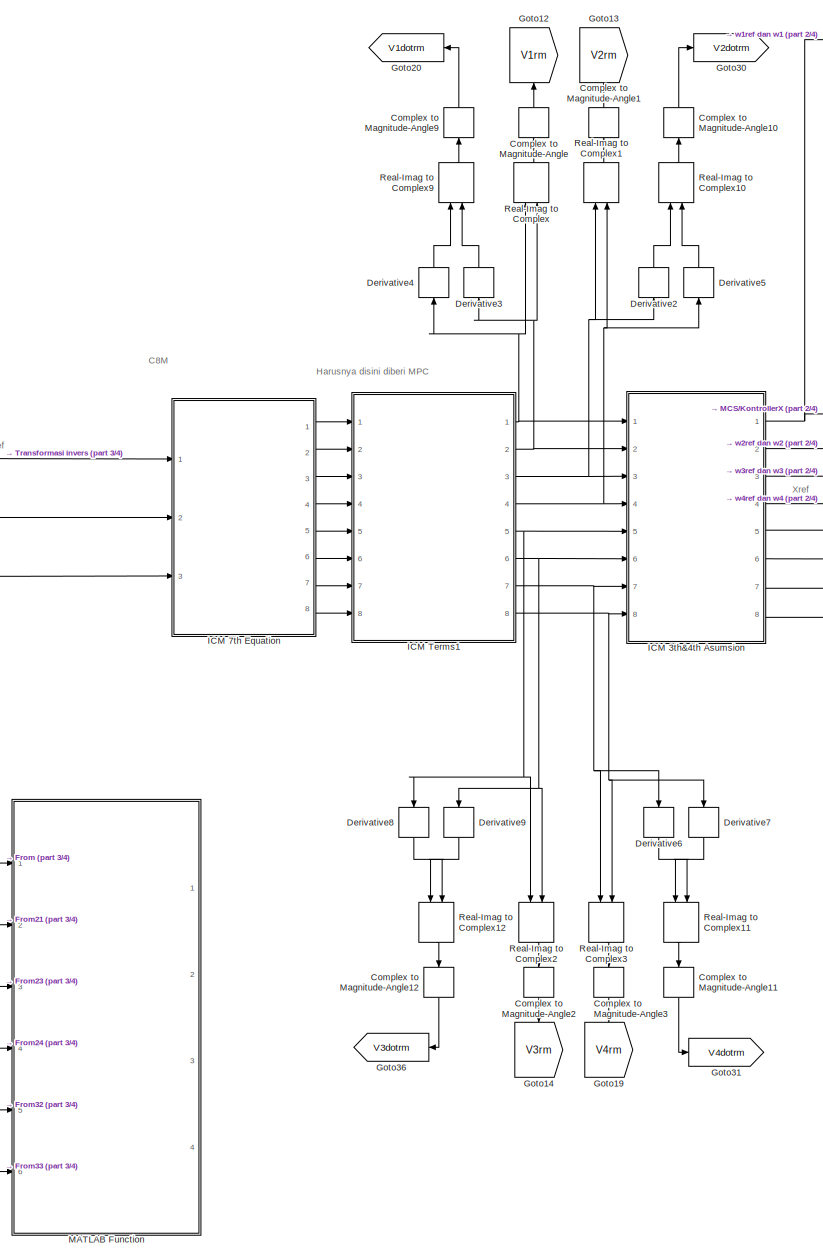
[diagram: root canvas - part 1/4, center side, full height]
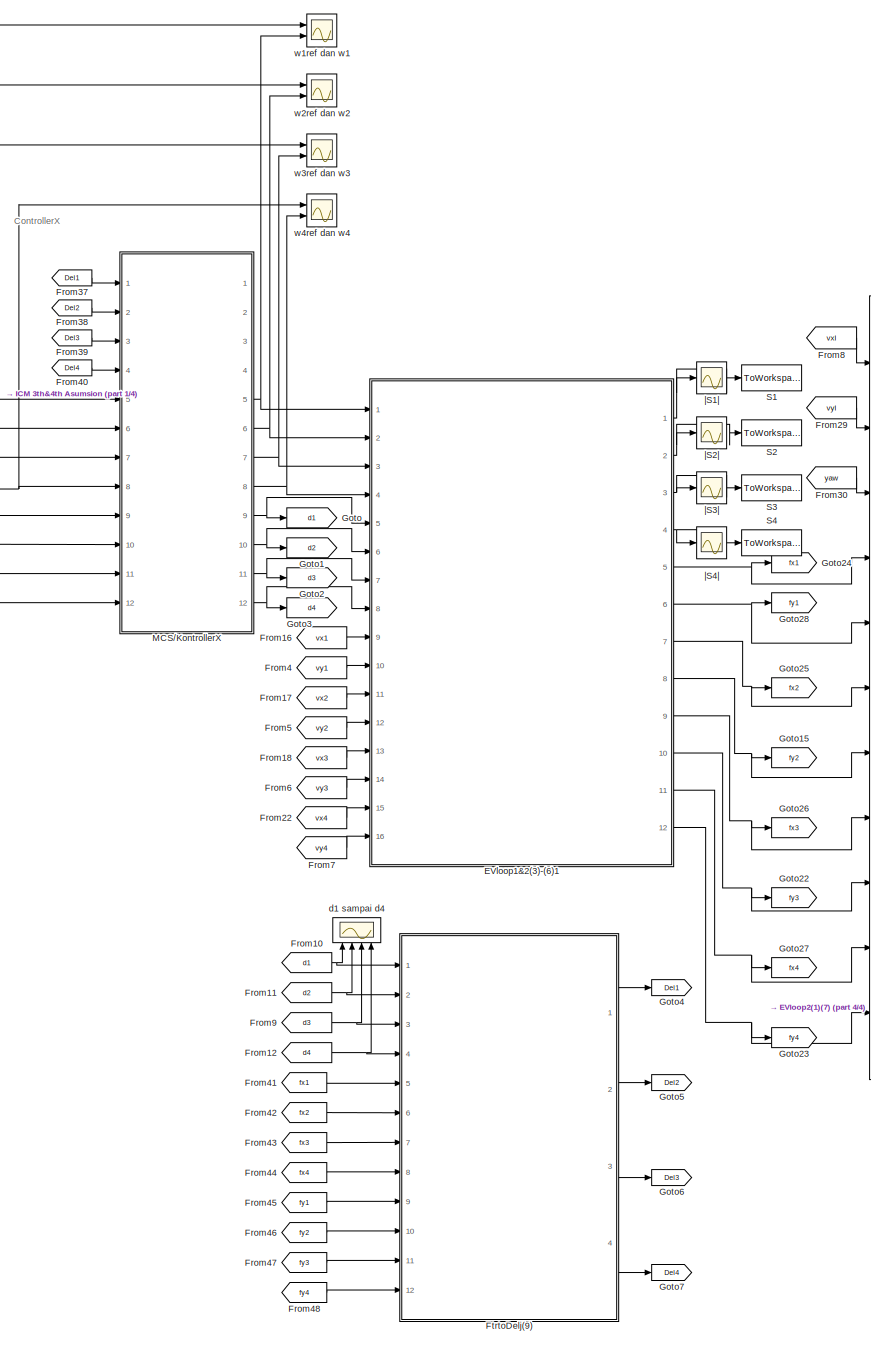
[diagram: root canvas - part 2/4, center side, full height]
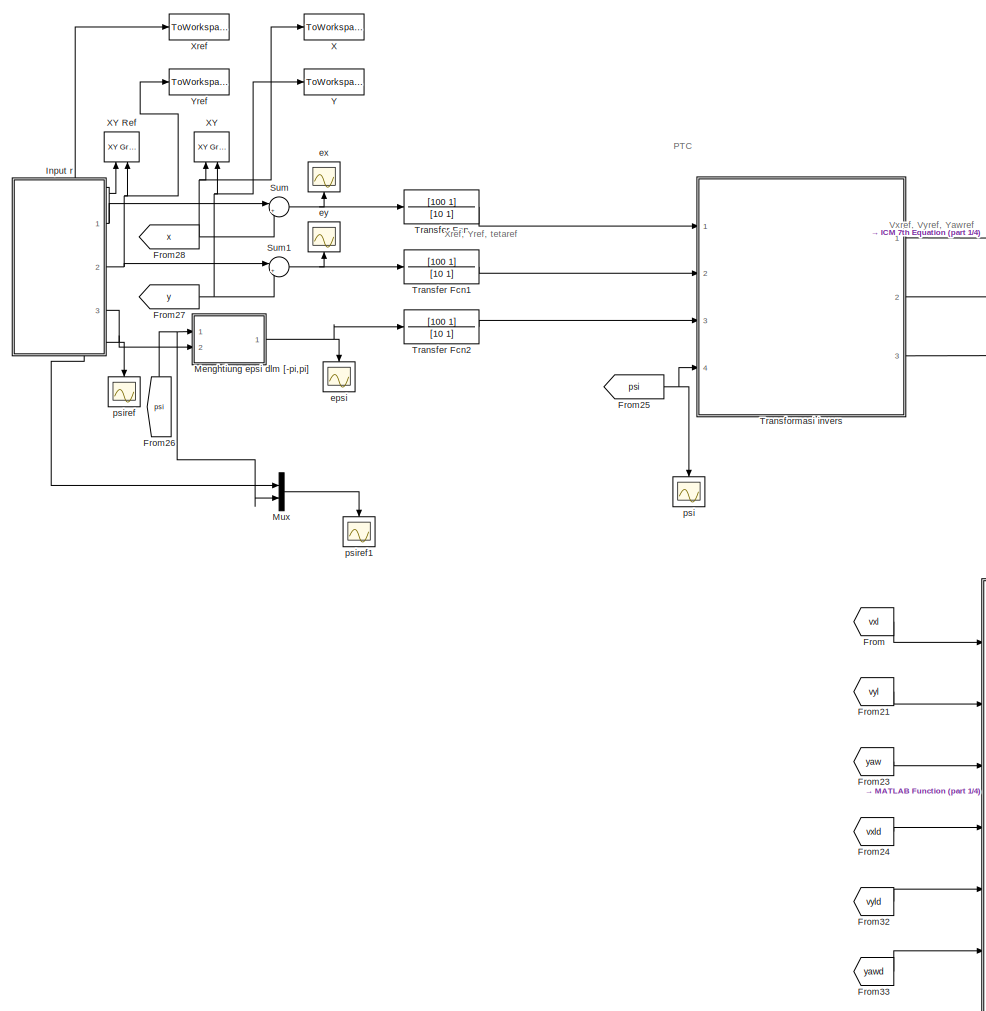
[diagram: root canvas - part 3/4, left side, full height]
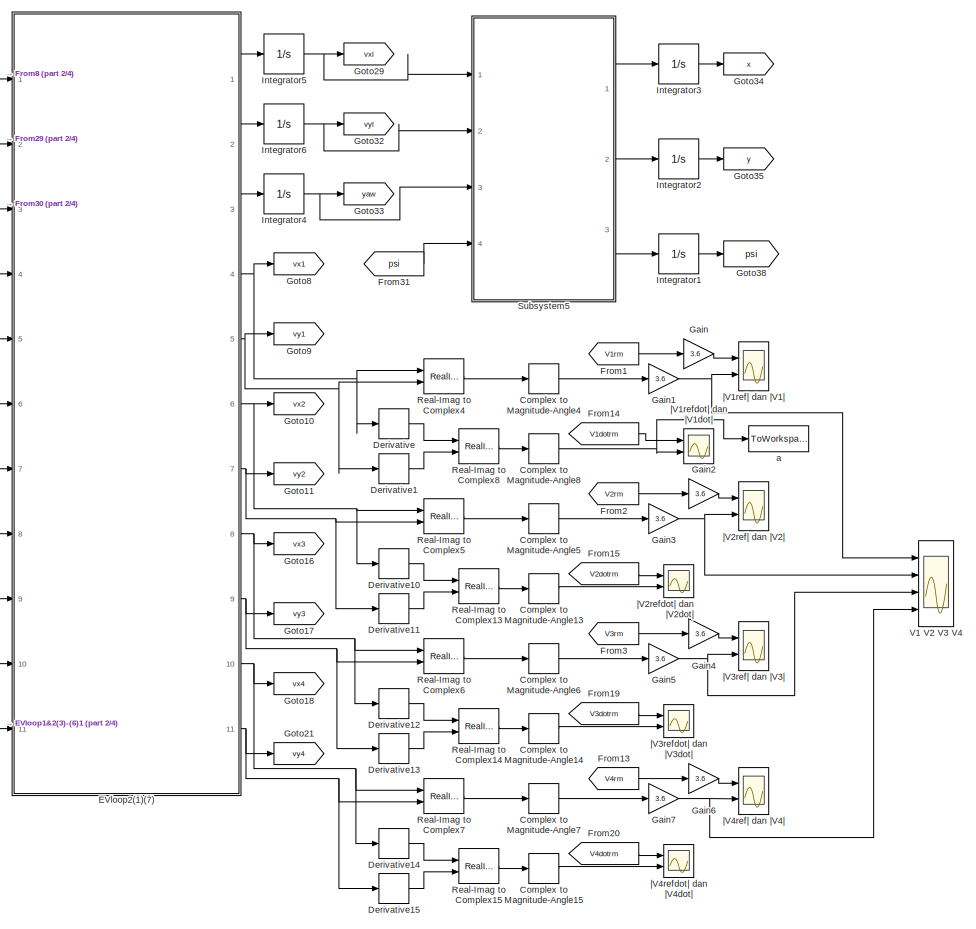
[diagram: root canvas - part 4/4, middle right region]
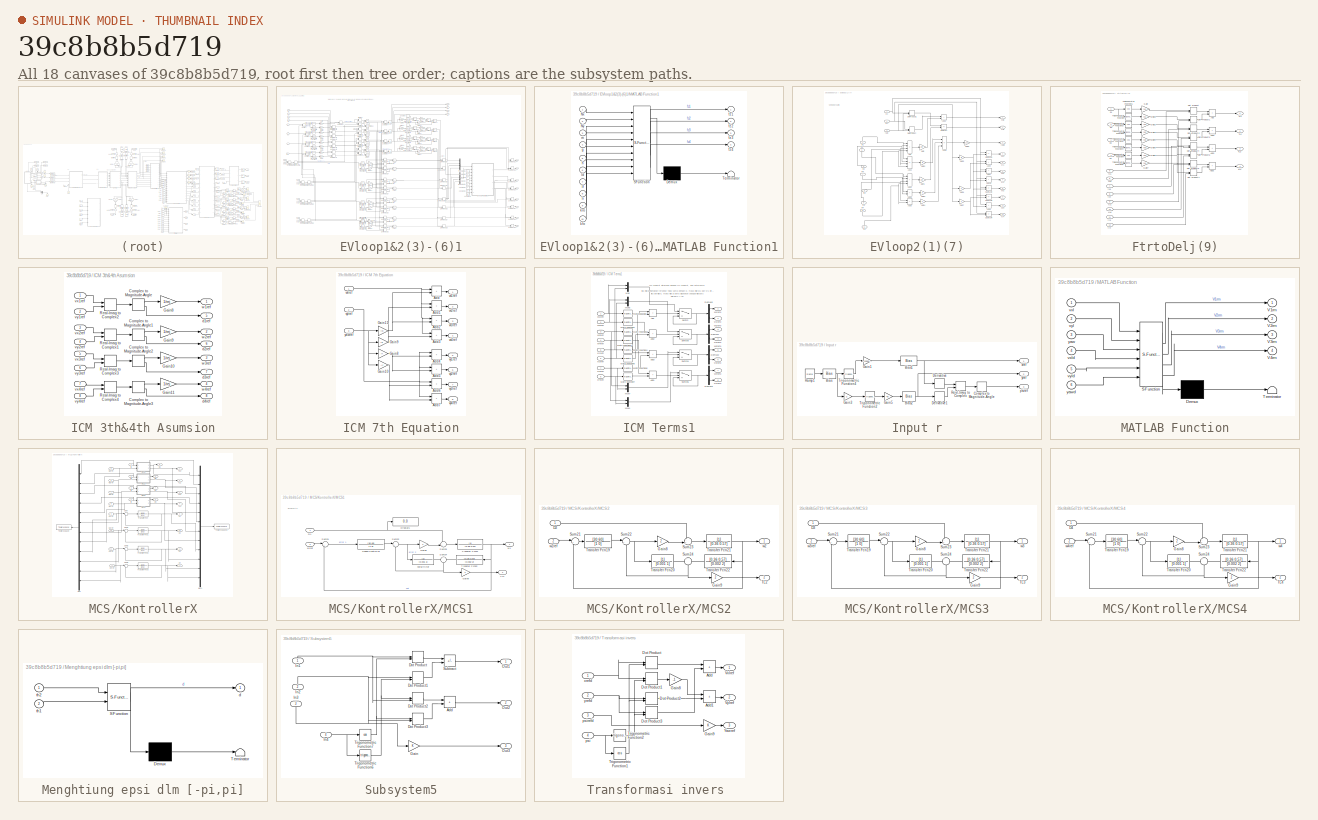
[diagram: thumbnail index - all 18 canvases of the model, root first then tree order]
MODEL slx_39c8b8b5d719
KIND model
CONFIG AbsTol = auto
CONFIG EnableMultiTasking = off
CONFIG FixedStep = auto
CONFIG MaxStep = auto
CONFIG MinStep = auto
CONFIG RelTol = 1e-3
CONFIG SampleTimeConstraint = Unconstrained
CONFIG SolverName = VariableStepAuto
CONFIG StartTime = 0.0
CONFIG StopTime = 100
BLOCK [ComplexToMagnitudeAngle] Complex to Magnitude-Angle
  NameLocation = right
  Output = Magnitude
  Ports = [1, 1]
BLOCK [ComplexToMagnitudeAngle] Complex to Magnitude-Angle1
  NameLocation = right
  Output = Magnitude
  Ports = [1, 1]
BLOCK [ComplexToMagnitudeAngle] Complex to Magnitude-Angle10
  NameLocation = right
  Output = Magnitude
  Ports = [1, 1]
BLOCK [ComplexToMagnitudeAngle] Complex to Magnitude-Angle11
  NameLocation = left
  Output = Magnitude
  Ports = [1, 1]
BLOCK [ComplexToMagnitudeAngle] Complex to Magnitude-Angle12
  NameLocation = left
  Output = Magnitude
  Ports = [1, 1]
BLOCK [ComplexToMagnitudeAngle] Complex to Magnitude-Angle13
  Output = Magnitude
  Ports = [1, 1]
BLOCK [ComplexToMagnitudeAngle] Complex to Magnitude-Angle14
  Output = Magnitude
  Ports = [1, 1]
BLOCK [ComplexToMagnitudeAngle] Complex to Magnitude-Angle15
  Output = Magnitude
  Ports = [1, 1]
BLOCK [ComplexToMagnitudeAngle] Complex to Magnitude-Angle2
  NameLocation = left
  Output = Magnitude
  Ports = [1, 1]
BLOCK [ComplexToMagnitudeAngle] Complex to Magnitude-Angle3
  NameLocation = left
  Output = Magnitude
  Ports = [1, 1]
BLOCK [ComplexToMagnitudeAngle] Complex to Magnitude-Angle4
  Output = Magnitude
  Ports = [1, 1]
BLOCK [ComplexToMagnitudeAngle] Complex to Magnitude-Angle5
  Output = Magnitude
  Ports = [1, 1]
BLOCK [ComplexToMagnitudeAngle] Complex to Magnitude-Angle6
  Output = Magnitude
  Ports = [1, 1]
BLOCK [ComplexToMagnitudeAngle] Complex to Magnitude-Angle7
  Output = Magnitude
  Ports = [1, 1]
BLOCK [ComplexToMagnitudeAngle] Complex to Magnitude-Angle8
  Output = Magnitude
  Ports = [1, 1]
BLOCK [ComplexToMagnitudeAngle] Complex to Magnitude-Angle9
  NameLocation = right
  Output = Magnitude
  Ports = [1, 1]
BLOCK [Derivative] Derivative
BLOCK [Derivative] Derivative1
BLOCK [Derivative] Derivative10
BLOCK [Derivative] Derivative11
BLOCK [Derivative] Derivative12
BLOCK [Derivative] Derivative13
BLOCK [Derivative] Derivative14
BLOCK [Derivative] Derivative15
BLOCK [Derivative] Derivative2
  NameLocation = right
BLOCK [Derivative] Derivative3
  NameLocation = right
BLOCK [Derivative] Derivative4
  NameLocation = right
BLOCK [Derivative] Derivative5
  NameLocation = right
BLOCK [Derivative] Derivative6
  NameLocation = left
BLOCK [Derivative] Derivative7
  NameLocation = left
BLOCK [Derivative] Derivative8
  NameLocation = left
BLOCK [Derivative] Derivative9
  NameLocation = left
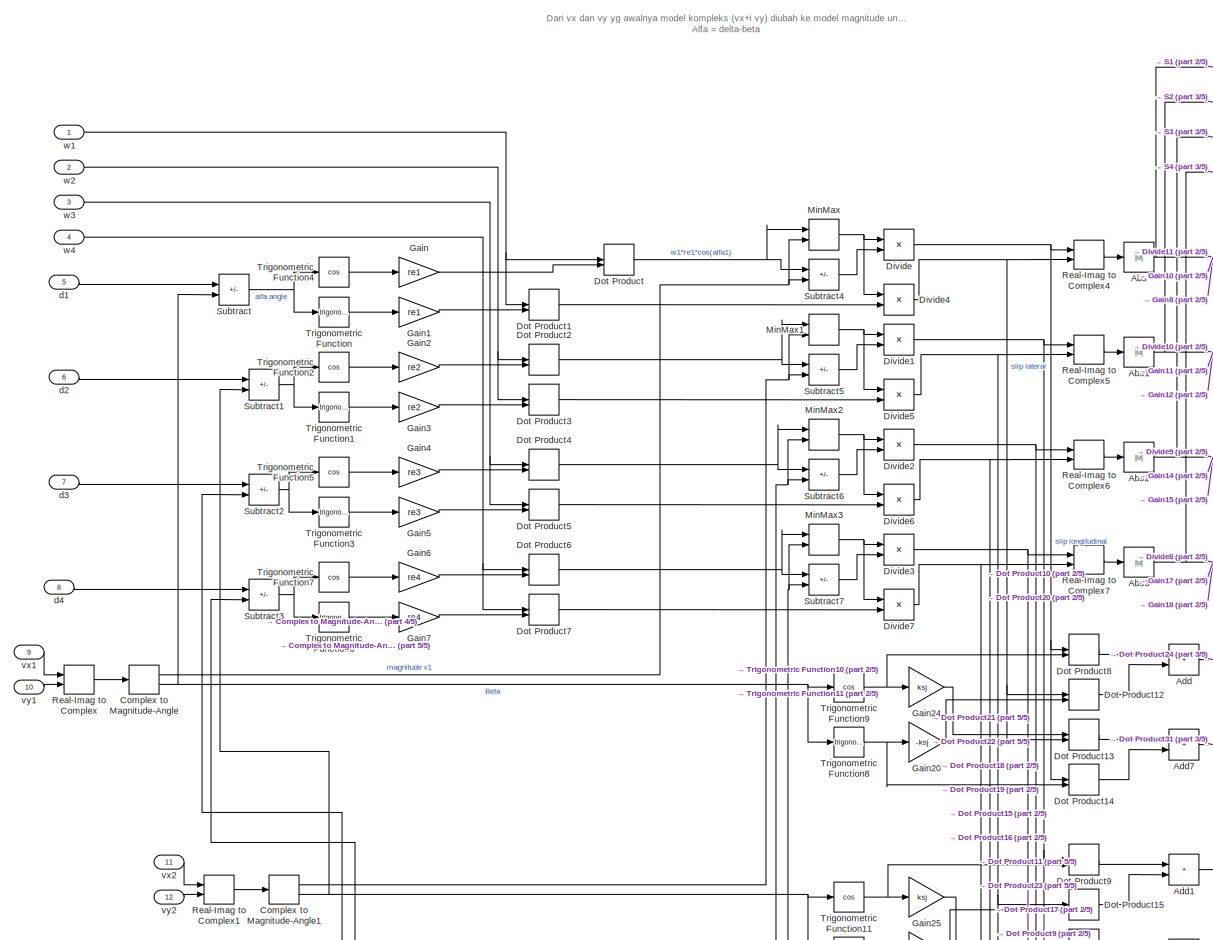
[diagram: EVloop1&2(3)-(6)1 - part 1/5, middle left region]
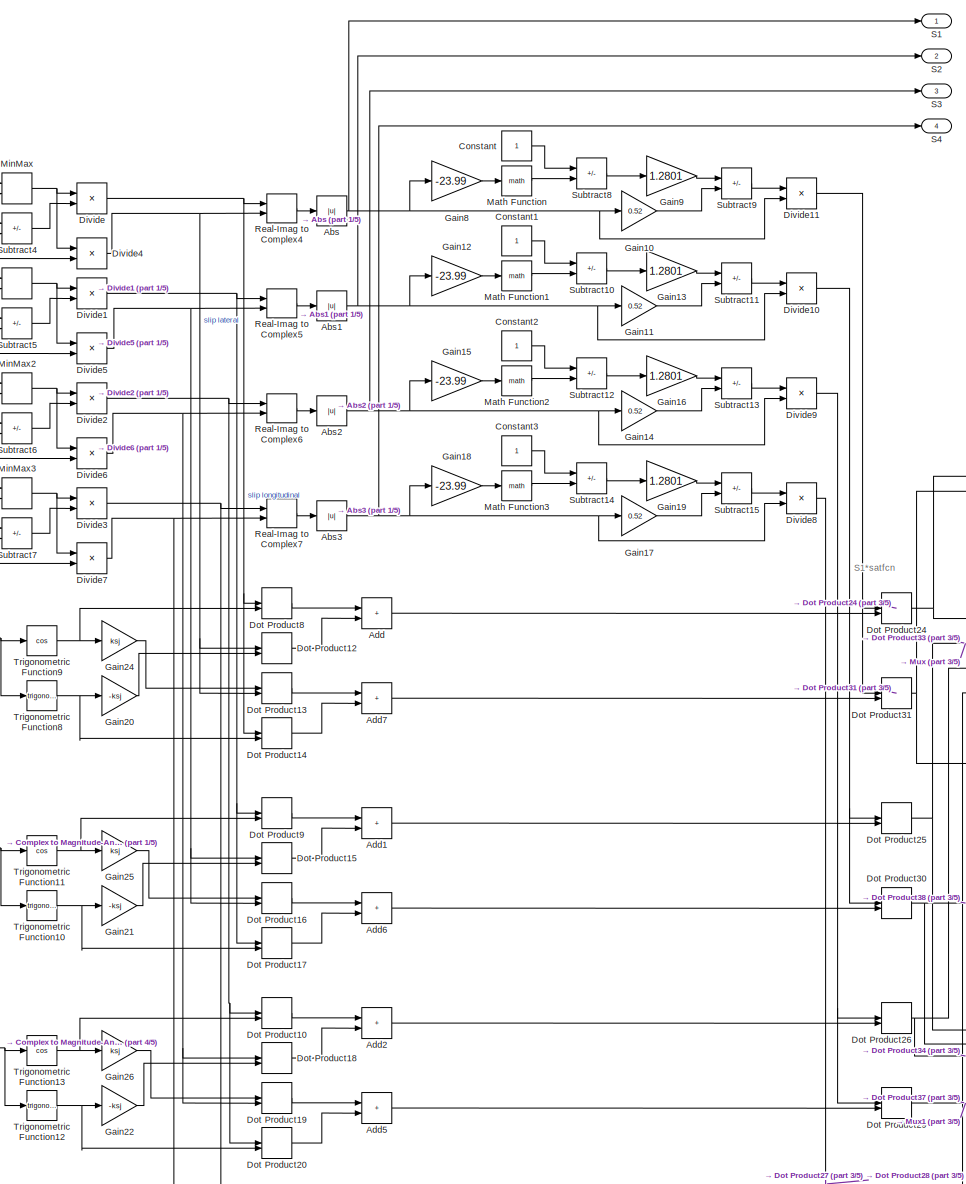
[diagram: EVloop1&2(3)-(6)1 - part 2/5, center side, full height]
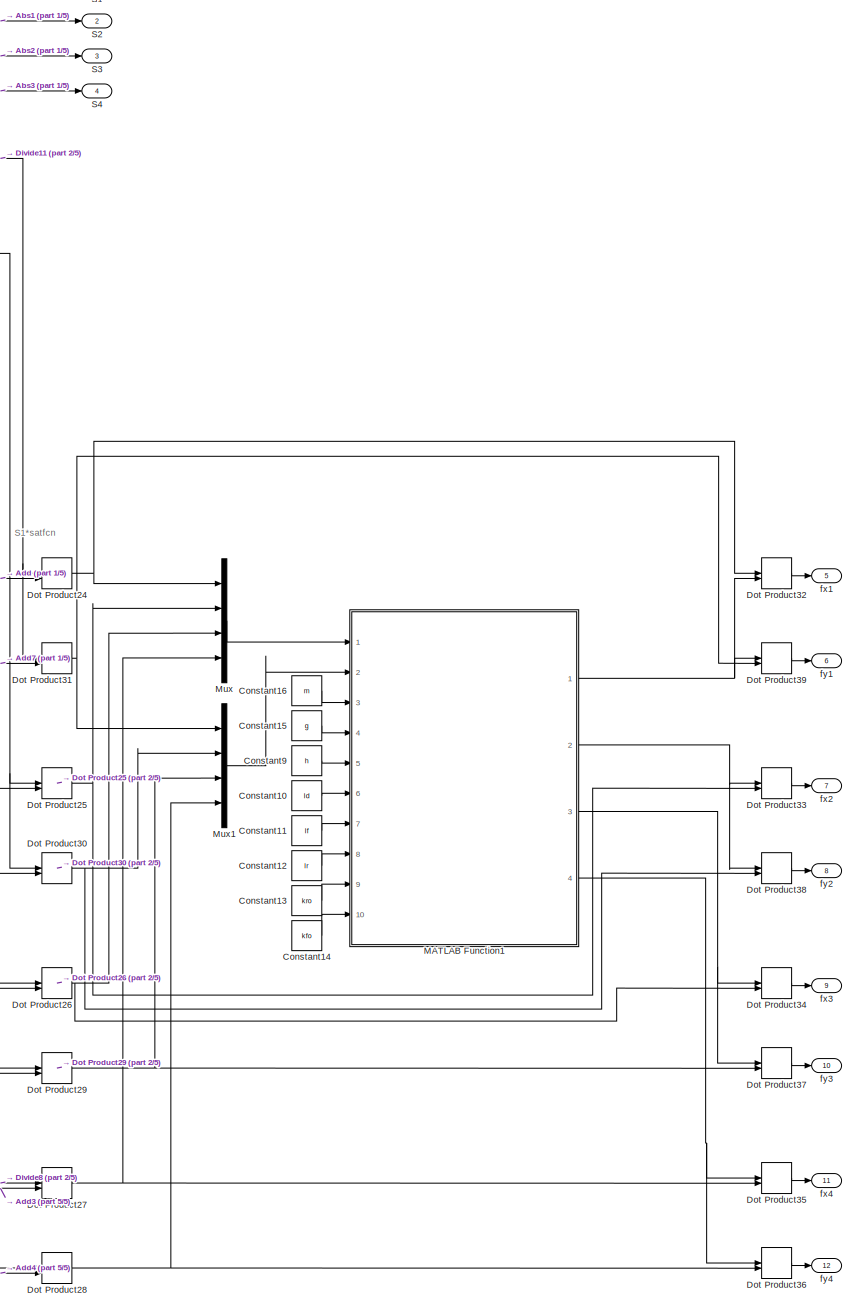
[diagram: EVloop1&2(3)-(6)1 - part 3/5, right side, full height]
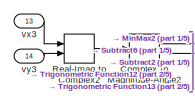
[diagram: EVloop1&2(3)-(6)1 - part 4/5, bottom left region]
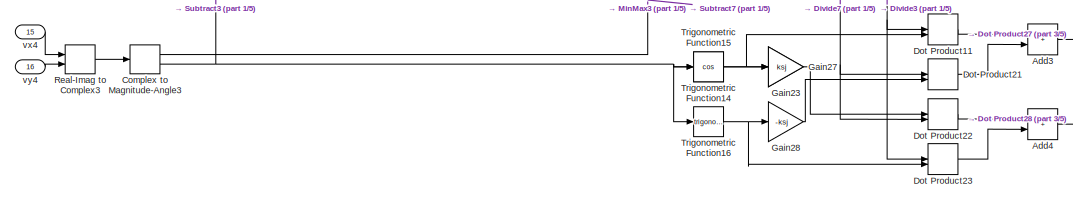
[diagram: EVloop1&2(3)-(6)1 - part 5/5, bottom left region]
BLOCK [SubSystem] EVloop1&2(3)-(6)1
  Ports = [16, 12]
  RequestExecContextInheritance = off
BLOCK [Abs] EVloop1&2(3)-(6)1/Abs
  SaturateOnIntegerOverflow = off
BLOCK [Abs] EVloop1&2(3)-(6)1/Abs1
  SaturateOnIntegerOverflow = off
BLOCK [Abs] EVloop1&2(3)-(6)1/Abs2
  SaturateOnIntegerOverflow = off
BLOCK [Abs] EVloop1&2(3)-(6)1/Abs3
  SaturateOnIntegerOverflow = off
BLOCK [Sum] EVloop1&2(3)-(6)1/Add
  IconShape = rectangular
  Ports = [2, 1]
BLOCK [Sum] EVloop1&2(3)-(6)1/Add1
  IconShape = rectangular
  Ports = [2, 1]
BLOCK [Sum] EVloop1&2(3)-(6)1/Add2
  IconShape = rectangular
  Ports = [2, 1]
BLOCK [Sum] EVloop1&2(3)-(6)1/Add3
  IconShape = rectangular
  Ports = [2, 1]
BLOCK [Sum] EVloop1&2(3)-(6)1/Add4
  IconShape = rectangular
  Ports = [2, 1]
BLOCK [Sum] EVloop1&2(3)-(6)1/Add5
  IconShape = rectangular
  Ports = [2, 1]
BLOCK [Sum] EVloop1&2(3)-(6)1/Add6
  IconShape = rectangular
  Ports = [2, 1]
BLOCK [Sum] EVloop1&2(3)-(6)1/Add7
  IconShape = rectangular
  Ports = [2, 1]
BLOCK [ComplexToMagnitudeAngle] EVloop1&2(3)-(6)1/Complex to Magnitude-Angle
  Ports = [1, 2]
BLOCK [ComplexToMagnitudeAngle] EVloop1&2(3)-(6)1/Complex to Magnitude-Angle1
  Ports = [1, 2]
BLOCK [ComplexToMagnitudeAngle] EVloop1&2(3)-(6)1/Complex to Magnitude-Angle2
  Ports = [1, 2]
BLOCK [ComplexToMagnitudeAngle] EVloop1&2(3)-(6)1/Complex to Magnitude-Angle3
  Ports = [1, 2]
BLOCK [Constant] EVloop1&2(3)-(6)1/Constant
BLOCK [Constant] EVloop1&2(3)-(6)1/Constant1
BLOCK [Constant] EVloop1&2(3)-(6)1/Constant10
  Value = ld
BLOCK [Constant] EVloop1&2(3)-(6)1/Constant11
  Value = lf
BLOCK [Constant] EVloop1&2(3)-(6)1/Constant12
  Value = lr
BLOCK [Constant] EVloop1&2(3)-(6)1/Constant13
  Value = kro
BLOCK [Constant] EVloop1&2(3)-(6)1/Constant14
  Value = kfo
BLOCK [Constant] EVloop1&2(3)-(6)1/Constant15
  Value = g
BLOCK [Constant] EVloop1&2(3)-(6)1/Constant16
  Value = m
BLOCK [Constant] EVloop1&2(3)-(6)1/Constant2
BLOCK [Constant] EVloop1&2(3)-(6)1/Constant3
BLOCK [Constant] EVloop1&2(3)-(6)1/Constant9
  Value = h
BLOCK [Product] EVloop1&2(3)-(6)1/Divide
  Inputs = /*
  Ports = [2, 1]
BLOCK [Product] EVloop1&2(3)-(6)1/Divide1
  Inputs = /*
  Ports = [2, 1]
BLOCK [Product] EVloop1&2(3)-(6)1/Divide10
  Inputs = */
  Ports = [2, 1]
BLOCK [Product] EVloop1&2(3)-(6)1/Divide11
  Inputs = */
  Ports = [2, 1]
BLOCK [Product] EVloop1&2(3)-(6)1/Divide2
  Inputs = /*
  Ports = [2, 1]
BLOCK [Product] EVloop1&2(3)-(6)1/Divide3
  Inputs = /*
  Ports = [2, 1]
BLOCK [Product] EVloop1&2(3)-(6)1/Divide4
  Inputs = /*
  Ports = [2, 1]
BLOCK [Product] EVloop1&2(3)-(6)1/Divide5
  Inputs = /*
  Ports = [2, 1]
BLOCK [Product] EVloop1&2(3)-(6)1/Divide6
  Inputs = /*
  Ports = [2, 1]
BLOCK [Product] EVloop1&2(3)-(6)1/Divide7
  Inputs = /*
  Ports = [2, 1]
BLOCK [Product] EVloop1&2(3)-(6)1/Divide8
  Inputs = */
  Ports = [2, 1]
BLOCK [Product] EVloop1&2(3)-(6)1/Divide9
  Inputs = */
  Ports = [2, 1]
BLOCK [DotProduct] EVloop1&2(3)-(6)1/Dot Product
  OutDataTypeStr = Inherit: Inherit via internal rule
BLOCK [DotProduct] EVloop1&2(3)-(6)1/Dot Product1
  OutDataTypeStr = Inherit: Inherit via internal rule
BLOCK [DotProduct] EVloop1&2(3)-(6)1/Dot Product10
  OutDataTypeStr = Inherit: Inherit via internal rule
BLOCK [DotProduct] EVloop1&2(3)-(6)1/Dot Product11
  OutDataTypeStr = Inherit: Inherit via internal rule
BLOCK [DotProduct] EVloop1&2(3)-(6)1/Dot Product12
  OutDataTypeStr = Inherit: Inherit via internal rule
BLOCK [DotProduct] EVloop1&2(3)-(6)1/Dot Product13
  OutDataTypeStr = Inherit: Inherit via internal rule
BLOCK [DotProduct] EVloop1&2(3)-(6)1/Dot Product14
  OutDataTypeStr = Inherit: Inherit via internal rule
BLOCK [DotProduct] EVloop1&2(3)-(6)1/Dot Product15
  OutDataTypeStr = Inherit: Inherit via internal rule
BLOCK [DotProduct] EVloop1&2(3)-(6)1/Dot Product16
  OutDataTypeStr = Inherit: Inherit via internal rule
BLOCK [DotProduct] EVloop1&2(3)-(6)1/Dot Product17
  OutDataTypeStr = Inherit: Inherit via internal rule
BLOCK [DotProduct] EVloop1&2(3)-(6)1/Dot Product18
  OutDataTypeStr = Inherit: Inherit via internal rule
BLOCK [DotProduct] EVloop1&2(3)-(6)1/Dot Product19
  OutDataTypeStr = Inherit: Inherit via internal rule
BLOCK [DotProduct] EVloop1&2(3)-(6)1/Dot Product2
  OutDataTypeStr = Inherit: Inherit via internal rule
BLOCK [DotProduct] EVloop1&2(3)-(6)1/Dot Product20
  OutDataTypeStr = Inherit: Inherit via internal rule
BLOCK [DotProduct] EVloop1&2(3)-(6)1/Dot Product21
  OutDataTypeStr = Inherit: Inherit via internal rule
BLOCK [DotProduct] EVloop1&2(3)-(6)1/Dot Product22
  OutDataTypeStr = Inherit: Inherit via internal rule
BLOCK [DotProduct] EVloop1&2(3)-(6)1/Dot Product23
  OutDataTypeStr = Inherit: Inherit via internal rule
BLOCK [DotProduct] EVloop1&2(3)-(6)1/Dot Product24
  OutDataTypeStr = Inherit: Inherit via internal rule
BLOCK [DotProduct] EVloop1&2(3)-(6)1/Dot Product25
  OutDataTypeStr = Inherit: Inherit via internal rule
BLOCK [DotProduct] EVloop1&2(3)-(6)1/Dot Product26
  OutDataTypeStr = Inherit: Inherit via internal rule
BLOCK [DotProduct] EVloop1&2(3)-(6)1/Dot Product27
  OutDataTypeStr = Inherit: Inherit via internal rule
BLOCK [DotProduct] EVloop1&2(3)-(6)1/Dot Product28
  OutDataTypeStr = Inherit: Inherit via internal rule
BLOCK [DotProduct] EVloop1&2(3)-(6)1/Dot Product29
  OutDataTypeStr = Inherit: Inherit via internal rule
BLOCK [DotProduct] EVloop1&2(3)-(6)1/Dot Product3
  OutDataTypeStr = Inherit: Inherit via internal rule
BLOCK [DotProduct] EVloop1&2(3)-(6)1/Dot Product30
  OutDataTypeStr = Inherit: Inherit via internal rule
BLOCK [DotProduct] EVloop1&2(3)-(6)1/Dot Product31
  OutDataTypeStr = Inherit: Inherit via internal rule
BLOCK [DotProduct] EVloop1&2(3)-(6)1/Dot Product32
  OutDataTypeStr = Inherit: Inherit via internal rule
BLOCK [DotProduct] EVloop1&2(3)-(6)1/Dot Product33
  OutDataTypeStr = Inherit: Inherit via internal rule
BLOCK [DotProduct] EVloop1&2(3)-(6)1/Dot Product34
  OutDataTypeStr = Inherit: Inherit via internal rule
BLOCK [DotProduct] EVloop1&2(3)-(6)1/Dot Product35
  OutDataTypeStr = Inherit: Inherit via internal rule
BLOCK [DotProduct] EVloop1&2(3)-(6)1/Dot Product36
  OutDataTypeStr = Inherit: Inherit via internal rule
BLOCK [DotProduct] EVloop1&2(3)-(6)1/Dot Product37
  OutDataTypeStr = Inherit: Inherit via internal rule
BLOCK [DotProduct] EVloop1&2(3)-(6)1/Dot Product38
  OutDataTypeStr = Inherit: Inherit via internal rule
BLOCK [DotProduct] EVloop1&2(3)-(6)1/Dot Product39
  OutDataTypeStr = Inherit: Inherit via internal rule
BLOCK [DotProduct] EVloop1&2(3)-(6)1/Dot Product4
  OutDataTypeStr = Inherit: Inherit via internal rule
BLOCK [DotProduct] EVloop1&2(3)-(6)1/Dot Product5
  OutDataTypeStr = Inherit: Inherit via internal rule
BLOCK [DotProduct] EVloop1&2(3)-(6)1/Dot Product6
  OutDataTypeStr = Inherit: Inherit via internal rule
BLOCK [DotProduct] EVloop1&2(3)-(6)1/Dot Product7
  OutDataTypeStr = Inherit: Inherit via internal rule
BLOCK [DotProduct] EVloop1&2(3)-(6)1/Dot Product8
  OutDataTypeStr = Inherit: Inherit via internal rule
BLOCK [DotProduct] EVloop1&2(3)-(6)1/Dot Product9
  OutDataTypeStr = Inherit: Inherit via internal rule
BLOCK [Gain] EVloop1&2(3)-(6)1/Gain
  Gain = re1
BLOCK [Gain] EVloop1&2(3)-(6)1/Gain1
  Gain = re1
BLOCK [Gain] EVloop1&2(3)-(6)1/Gain10
  Gain = 0.52
BLOCK [Gain] EVloop1&2(3)-(6)1/Gain11
  Gain = 0.52
BLOCK [Gain] EVloop1&2(3)-(6)1/Gain12
  Gain = -23.99
BLOCK [Gain] EVloop1&2(3)-(6)1/Gain13
  Gain = 1.2801
BLOCK [Gain] EVloop1&2(3)-(6)1/Gain14
  Gain = 0.52
BLOCK [Gain] EVloop1&2(3)-(6)1/Gain15
  Gain = -23.99
BLOCK [Gain] EVloop1&2(3)-(6)1/Gain16
  Gain = 1.2801
BLOCK [Gain] EVloop1&2(3)-(6)1/Gain17
  Gain = 0.52
BLOCK [Gain] EVloop1&2(3)-(6)1/Gain18
  Gain = -23.99
BLOCK [Gain] EVloop1&2(3)-(6)1/Gain19
  Gain = 1.2801
BLOCK [Gain] EVloop1&2(3)-(6)1/Gain2
  Gain = re2
BLOCK [Gain] EVloop1&2(3)-(6)1/Gain20
  Gain = -ksj
BLOCK [Gain] EVloop1&2(3)-(6)1/Gain21
  Gain = -ksj
BLOCK [Gain] EVloop1&2(3)-(6)1/Gain22
  Gain = -ksj
BLOCK [Gain] EVloop1&2(3)-(6)1/Gain23
  Gain = -ksj
BLOCK [Gain] EVloop1&2(3)-(6)1/Gain24
  Gain = ksj
BLOCK [Gain] EVloop1&2(3)-(6)1/Gain25
  Gain = ksj
BLOCK [Gain] EVloop1&2(3)-(6)1/Gain26
  Gain = ksj
BLOCK [Gain] EVloop1&2(3)-(6)1/Gain27
  Gain = ksj
BLOCK [Gain] EVloop1&2(3)-(6)1/Gain28
  Gain = -ksj
BLOCK [Gain] EVloop1&2(3)-(6)1/Gain3
  Gain = re2
BLOCK [Gain] EVloop1&2(3)-(6)1/Gain4
  Gain = re3
BLOCK [Gain] EVloop1&2(3)-(6)1/Gain5
  Gain = re3
BLOCK [Gain] EVloop1&2(3)-(6)1/Gain6
  Gain = re4
BLOCK [Gain] EVloop1&2(3)-(6)1/Gain7
  Gain = re4
BLOCK [Gain] EVloop1&2(3)-(6)1/Gain8
  Gain = -23.99
BLOCK [Gain] EVloop1&2(3)-(6)1/Gain9
  Gain = 1.2801
BLOCK [SubSystem] EVloop1&2(3)-(6)1/MATLAB Function1
  ErrorFcn = Stateflow.Translate.translate
  PermitHierarchicalResolution = ExplicitOnly
  Ports = [10, 4]
  RequestExecContextInheritance = off
  SFBlockType = MATLAB Function
  TreatAsAtomicUnit = on
BLOCK [Demux] EVloop1&2(3)-(6)1/MATLAB Function1/ Demux 
  Outputs = 1
  Ports = [1, 1]
BLOCK [S-Function] EVloop1&2(3)-(6)1/MATLAB Function1/ SFunction 
  EnableBusSupport = on
  FunctionName = sf_sfun
  PortCounts = [10 5]
  Ports = [10, 5]
  SFcnIsStateOwnerBlock = off
  SFunctionDeploymentMode = off
  Tag = Stateflow S-Function 2
BLOCK [Terminator] EVloop1&2(3)-(6)1/MATLAB Function1/ Terminator 
BLOCK [Inport] EVloop1&2(3)-(6)1/MATLAB Function1/Nx
BLOCK [Inport] EVloop1&2(3)-(6)1/MATLAB Function1/Ny
  Port = 2
BLOCK [Outport] EVloop1&2(3)-(6)1/MATLAB Function1/fz1
BLOCK [Outport] EVloop1&2(3)-(6)1/MATLAB Function1/fz2
  Port = 2
BLOCK [Outport] EVloop1&2(3)-(6)1/MATLAB Function1/fz3
  Port = 3
BLOCK [Outport] EVloop1&2(3)-(6)1/MATLAB Function1/fz4
  Port = 4
BLOCK [Inport] EVloop1&2(3)-(6)1/MATLAB Function1/g
  Port = 4
BLOCK [Inport] EVloop1&2(3)-(6)1/MATLAB Function1/h
  Port = 5
BLOCK [Inport] EVloop1&2(3)-(6)1/MATLAB Function1/kfo
  Port = 10
BLOCK [Inport] EVloop1&2(3)-(6)1/MATLAB Function1/kro
  Port = 9
BLOCK [Inport] EVloop1&2(3)-(6)1/MATLAB Function1/ld
  Port = 6
BLOCK [Inport] EVloop1&2(3)-(6)1/MATLAB Function1/lf
  Port = 7
BLOCK [Inport] EVloop1&2(3)-(6)1/MATLAB Function1/lr
  Port = 8
BLOCK [Inport] EVloop1&2(3)-(6)1/MATLAB Function1/m
  Port = 3
BLOCK [Math] EVloop1&2(3)-(6)1/Math Function
  Ports = [1, 1]
  SignedPower = on
BLOCK [Math] EVloop1&2(3)-(6)1/Math Function1
  Ports = [1, 1]
  SignedPower = on
BLOCK [Math] EVloop1&2(3)-(6)1/Math Function2
  Ports = [1, 1]
  SignedPower = on
BLOCK [Math] EVloop1&2(3)-(6)1/Math Function3
  Ports = [1, 1]
  SignedPower = on
BLOCK [MinMax] EVloop1&2(3)-(6)1/MinMax
  Function = max
  Inputs = 2
  Ports = [2, 1]
BLOCK [MinMax] EVloop1&2(3)-(6)1/MinMax1
  Function = max
  Inputs = 2
  Ports = [2, 1]
BLOCK [MinMax] EVloop1&2(3)-(6)1/MinMax2
  Function = max
  Inputs = 2
  Ports = [2, 1]
BLOCK [MinMax] EVloop1&2(3)-(6)1/MinMax3
  Function = max
  Inputs = 2
  Ports = [2, 1]
BLOCK [Mux] EVloop1&2(3)-(6)1/Mux
  DisplayOption = bar
  Ports = [4, 1]
BLOCK [Mux] EVloop1&2(3)-(6)1/Mux1
  DisplayOption = bar
  Ports = [4, 1]
BLOCK [RealImagToComplex] EVloop1&2(3)-(6)1/Real-Imag to Complex
  Ports = [2, 1]
BLOCK [RealImagToComplex] EVloop1&2(3)-(6)1/Real-Imag to Complex1
  Ports = [2, 1]
BLOCK [RealImagToComplex] EVloop1&2(3)-(6)1/Real-Imag to Complex2
  Ports = [2, 1]
BLOCK [RealImagToComplex] EVloop1&2(3)-(6)1/Real-Imag to Complex3
  Ports = [2, 1]
BLOCK [RealImagToComplex] EVloop1&2(3)-(6)1/Real-Imag to Complex4
  Ports = [2, 1]
BLOCK [RealImagToComplex] EVloop1&2(3)-(6)1/Real-Imag to Complex5
  Ports = [2, 1]
BLOCK [RealImagToComplex] EVloop1&2(3)-(6)1/Real-Imag to Complex6
  Ports = [2, 1]
BLOCK [RealImagToComplex] EVloop1&2(3)-(6)1/Real-Imag to Complex7
  Ports = [2, 1]
BLOCK [Outport] EVloop1&2(3)-(6)1/S1
BLOCK [Outport] EVloop1&2(3)-(6)1/S2
  Port = 2
BLOCK [Outport] EVloop1&2(3)-(6)1/S3
  Port = 3
BLOCK [Outport] EVloop1&2(3)-(6)1/S4
  Port = 4
BLOCK [Sum] EVloop1&2(3)-(6)1/Subtract
  IconShape = rectangular
  Inputs = +-
  Ports = [2, 1]
BLOCK [Sum] EVloop1&2(3)-(6)1/Subtract1
  IconShape = rectangular
  Inputs = +-
  Ports = [2, 1]
BLOCK [Sum] EVloop1&2(3)-(6)1/Subtract10
  IconShape = rectangular
  Inputs = +-
  Ports = [2, 1]
BLOCK [Sum] EVloop1&2(3)-(6)1/Subtract11
  IconShape = rectangular
  Inputs = +-
  Ports = [2, 1]
BLOCK [Sum] EVloop1&2(3)-(6)1/Subtract12
  IconShape = rectangular
  Inputs = +-
  Ports = [2, 1]
BLOCK [Sum] EVloop1&2(3)-(6)1/Subtract13
  IconShape = rectangular
  Inputs = +-
  Ports = [2, 1]
BLOCK [Sum] EVloop1&2(3)-(6)1/Subtract14
  IconShape = rectangular
  Inputs = +-
  Ports = [2, 1]
BLOCK [Sum] EVloop1&2(3)-(6)1/Subtract15
  IconShape = rectangular
  Inputs = +-
  Ports = [2, 1]
BLOCK [Sum] EVloop1&2(3)-(6)1/Subtract2
  IconShape = rectangular
  Inputs = +-
  Ports = [2, 1]
BLOCK [Sum] EVloop1&2(3)-(6)1/Subtract3
  IconShape = rectangular
  Inputs = +-
  Ports = [2, 1]
BLOCK [Sum] EVloop1&2(3)-(6)1/Subtract4
  IconShape = rectangular
  Inputs = +-
  Ports = [2, 1]
BLOCK [Sum] EVloop1&2(3)-(6)1/Subtract5
  IconShape = rectangular
  Inputs = +-
  Ports = [2, 1]
BLOCK [Sum] EVloop1&2(3)-(6)1/Subtract6
  IconShape = rectangular
  Inputs = +-
  Ports = [2, 1]
BLOCK [Sum] EVloop1&2(3)-(6)1/Subtract7
  IconShape = rectangular
  Inputs = +-
  Ports = [2, 1]
BLOCK [Sum] EVloop1&2(3)-(6)1/Subtract8
  IconShape = rectangular
  Inputs = +-
  Ports = [2, 1]
BLOCK [Sum] EVloop1&2(3)-(6)1/Subtract9
  IconShape = rectangular
  Inputs = +-
  Ports = [2, 1]
BLOCK [Trigonometry] EVloop1&2(3)-(6)1/Trigonometric Function
  Ports = [1, 1]
BLOCK [Trigonometry] EVloop1&2(3)-(6)1/Trigonometric Function1
  Ports = [1, 1]
BLOCK [Trigonometry] EVloop1&2(3)-(6)1/Trigonometric Function10
  Ports = [1, 1]
BLOCK [Trigonometry] EVloop1&2(3)-(6)1/Trigonometric Function11
  Operator = cos
  Ports = [1, 1]
BLOCK [Trigonometry] EVloop1&2(3)-(6)1/Trigonometric Function12
  Ports = [1, 1]
BLOCK [Trigonometry] EVloop1&2(3)-(6)1/Trigonometric Function13
  Operator = cos
  Ports = [1, 1]
BLOCK [Trigonometry] EVloop1&2(3)-(6)1/Trigonometric Function14
  Ports = [1, 1]
BLOCK [Trigonometry] EVloop1&2(3)-(6)1/Trigonometric Function15
  Operator = cos
  Ports = [1, 1]
BLOCK [Trigonometry] EVloop1&2(3)-(6)1/Trigonometric Function16
  Ports = [1, 1]
BLOCK [Trigonometry] EVloop1&2(3)-(6)1/Trigonometric Function2
  Operator = cos
  Ports = [1, 1]
BLOCK [Trigonometry] EVloop1&2(3)-(6)1/Trigonometric Function3
  Ports = [1, 1]
BLOCK [Trigonometry] EVloop1&2(3)-(6)1/Trigonometric Function4
  Operator = cos
  Ports = [1, 1]
BLOCK [Trigonometry] EVloop1&2(3)-(6)1/Trigonometric Function5
  Operator = cos
  Ports = [1, 1]
BLOCK [Trigonometry] EVloop1&2(3)-(6)1/Trigonometric Function6
  Ports = [1, 1]
BLOCK [Trigonometry] EVloop1&2(3)-(6)1/Trigonometric Function7
  Operator = cos
  Ports = [1, 1]
BLOCK [Trigonometry] EVloop1&2(3)-(6)1/Trigonometric Function8
  Ports = [1, 1]
BLOCK [Trigonometry] EVloop1&2(3)-(6)1/Trigonometric Function9
  Operator = cos
  Ports = [1, 1]
BLOCK [Inport] EVloop1&2(3)-(6)1/d1
  Port = 5
BLOCK [Inport] EVloop1&2(3)-(6)1/d2
  Port = 6
BLOCK [Inport] EVloop1&2(3)-(6)1/d3
  Port = 7
BLOCK [Inport] EVloop1&2(3)-(6)1/d4
  Port = 8
BLOCK [Outport] EVloop1&2(3)-(6)1/fx1
  Port = 5
BLOCK [Outport] EVloop1&2(3)-(6)1/fx2
  Port = 7
BLOCK [Outport] EVloop1&2(3)-(6)1/fx3
  Port = 9
BLOCK [Outport] EVloop1&2(3)-(6)1/fx4
  Port = 11
BLOCK [Outport] EVloop1&2(3)-(6)1/fy1
  Port = 6
BLOCK [Outport] EVloop1&2(3)-(6)1/fy2
  Port = 8
BLOCK [Outport] EVloop1&2(3)-(6)1/fy3
  Port = 10
BLOCK [Outport] EVloop1&2(3)-(6)1/fy4
  Port = 12
BLOCK [Inport] EVloop1&2(3)-(6)1/vx1
  Port = 9
BLOCK [Inport] EVloop1&2(3)-(6)1/vx2
  Port = 11
BLOCK [Inport] EVloop1&2(3)-(6)1/vx3
  Port = 13
BLOCK [Inport] EVloop1&2(3)-(6)1/vx4
  Port = 15
BLOCK [Inport] EVloop1&2(3)-(6)1/vy1
  Port = 10
BLOCK [Inport] EVloop1&2(3)-(6)1/vy2
  Port = 12
BLOCK [Inport] EVloop1&2(3)-(6)1/vy3
  Port = 14
BLOCK [Inport] EVloop1&2(3)-(6)1/vy4
  Port = 16
BLOCK [Inport] EVloop1&2(3)-(6)1/w1
BLOCK [Inport] EVloop1&2(3)-(6)1/w2
  Port = 2
BLOCK [Inport] EVloop1&2(3)-(6)1/w3
  Port = 3
BLOCK [Inport] EVloop1&2(3)-(6)1/w4
  Port = 4
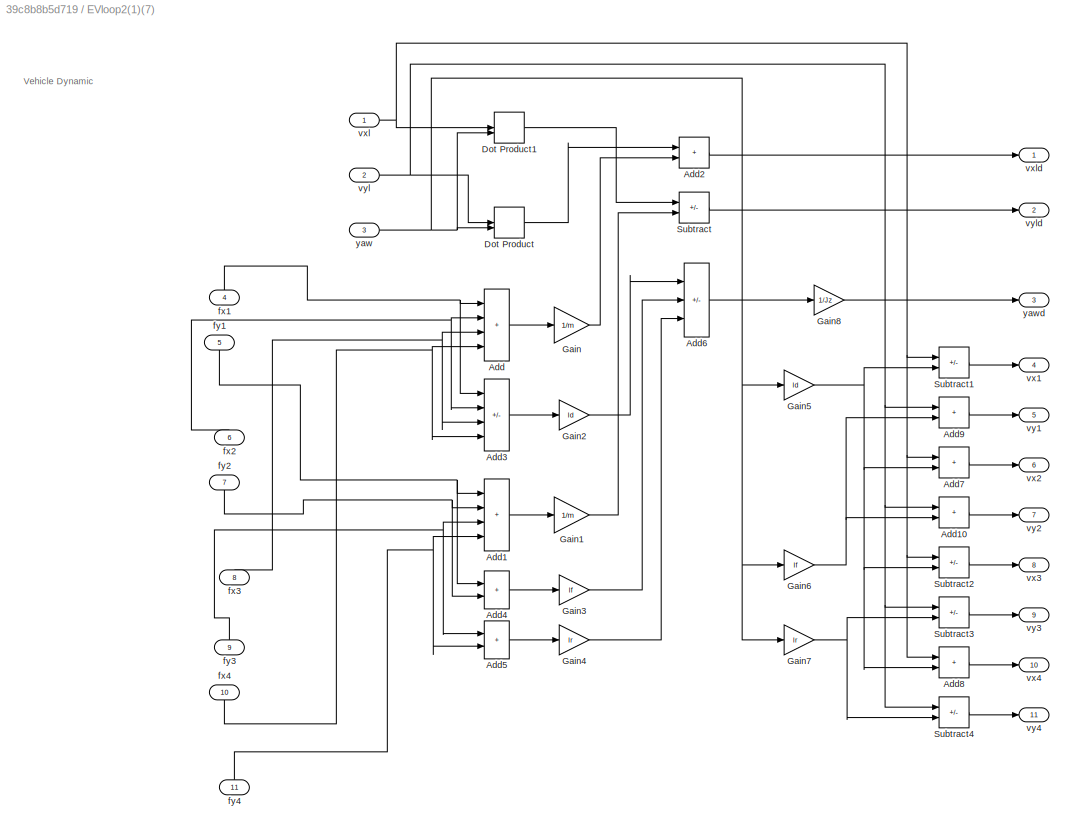
BLOCK [SubSystem] EVloop2(1)(7)
  Ports = [11, 11]
  RequestExecContextInheritance = off
BLOCK [Sum] EVloop2(1)(7)/Add
  IconShape = rectangular
  Inputs = ++++
  Ports = [4, 1]
BLOCK [Sum] EVloop2(1)(7)/Add1
  IconShape = rectangular
  Inputs = ++++
  Ports = [4, 1]
BLOCK [Sum] EVloop2(1)(7)/Add10
  IconShape = rectangular
  Ports = [2, 1]
BLOCK [Sum] EVloop2(1)(7)/Add2
  IconShape = rectangular
  Ports = [2, 1]
BLOCK [Sum] EVloop2(1)(7)/Add3
  IconShape = rectangular
  Inputs = -+-+
  Ports = [4, 1]
BLOCK [Sum] EVloop2(1)(7)/Add4
  IconShape = rectangular
  Ports = [2, 1]
BLOCK [Sum] EVloop2(1)(7)/Add5
  IconShape = rectangular
  Ports = [2, 1]
BLOCK [Sum] EVloop2(1)(7)/Add6
  IconShape = rectangular
  Inputs = ++-
  Ports = [3, 1]
BLOCK [Sum] EVloop2(1)(7)/Add7
  IconShape = rectangular
  Ports = [2, 1]
BLOCK [Sum] EVloop2(1)(7)/Add8
  IconShape = rectangular
  Ports = [2, 1]
BLOCK [Sum] EVloop2(1)(7)/Add9
  IconShape = rectangular
  Ports = [2, 1]
BLOCK [DotProduct] EVloop2(1)(7)/Dot Product
  OutDataTypeStr = Inherit: Inherit via internal rule
BLOCK [DotProduct] EVloop2(1)(7)/Dot Product1
  OutDataTypeStr = Inherit: Inherit via internal rule
BLOCK [Gain] EVloop2(1)(7)/Gain
  Gain = 1/m
BLOCK [Gain] EVloop2(1)(7)/Gain1
  Gain = 1/m
BLOCK [Gain] EVloop2(1)(7)/Gain2
  Gain = ld
BLOCK [Gain] EVloop2(1)(7)/Gain3
  Gain = lf
BLOCK [Gain] EVloop2(1)(7)/Gain4
  Gain = lr
BLOCK [Gain] EVloop2(1)(7)/Gain5
  Gain = ld
BLOCK [Gain] EVloop2(1)(7)/Gain6
  Gain = lf
BLOCK [Gain] EVloop2(1)(7)/Gain7
  Gain = lr
BLOCK [Gain] EVloop2(1)(7)/Gain8
  Gain = 1/Jz
BLOCK [Sum] EVloop2(1)(7)/Subtract
  IconShape = rectangular
  Inputs = -+
  Ports = [2, 1]
BLOCK [Sum] EVloop2(1)(7)/Subtract1
  IconShape = rectangular
  Inputs = +-
  Ports = [2, 1]
BLOCK [Sum] EVloop2(1)(7)/Subtract2
  IconShape = rectangular
  Inputs = +-
  Ports = [2, 1]
BLOCK [Sum] EVloop2(1)(7)/Subtract3
  IconShape = rectangular
  Inputs = +-
  Ports = [2, 1]
BLOCK [Sum] EVloop2(1)(7)/Subtract4
  IconShape = rectangular
  Inputs = +-
  Ports = [2, 1]
BLOCK [Inport] EVloop2(1)(7)/fx1
  NameLocation = right
  Port = 4
BLOCK [Inport] EVloop2(1)(7)/fx2
  NameLocation = right
  Port = 6
BLOCK [Inport] EVloop2(1)(7)/fx3
  NameLocation = right
  Port = 8
BLOCK [Inport] EVloop2(1)(7)/fx4
  NameLocation = right
  Port = 10
BLOCK [Inport] EVloop2(1)(7)/fy1
  NameLocation = right
  Port = 5
BLOCK [Inport] EVloop2(1)(7)/fy2
  NameLocation = right
  Port = 7
BLOCK [Inport] EVloop2(1)(7)/fy3
  NameLocation = right
  Port = 9
BLOCK [Inport] EVloop2(1)(7)/fy4
  NameLocation = right
  Port = 11
BLOCK [Outport] EVloop2(1)(7)/vx1
  Port = 4
BLOCK [Outport] EVloop2(1)(7)/vx2
  Port = 6
BLOCK [Outport] EVloop2(1)(7)/vx3
  Port = 8
BLOCK [Outport] EVloop2(1)(7)/vx4
  Port = 10
BLOCK [Inport] EVloop2(1)(7)/vxl
BLOCK [Outport] EVloop2(1)(7)/vxld
BLOCK [Outport] EVloop2(1)(7)/vy1
  Port = 5
BLOCK [Outport] EVloop2(1)(7)/vy2
  Port = 7
BLOCK [Outport] EVloop2(1)(7)/vy3
  Port = 9
BLOCK [Outport] EVloop2(1)(7)/vy4
  Port = 11
BLOCK [Inport] EVloop2(1)(7)/vyl
  Port = 2
BLOCK [Outport] EVloop2(1)(7)/vyld
  Port = 2
BLOCK [Inport] EVloop2(1)(7)/yaw
  Port = 3
BLOCK [Outport] EVloop2(1)(7)/yawd
  Port = 3
BLOCK [From] From
  Commented = on
  GotoTag = vxl
  TagVisibility = global
BLOCK [From] From1
  GotoTag = V1rm
BLOCK [From] From10
  GotoTag = d1
  IconDisplay = Tag and signal name
BLOCK [From] From11
  GotoTag = d2
BLOCK [From] From12
  GotoTag = d4
BLOCK [From] From13
  GotoTag = V4rm
BLOCK [From] From14
  GotoTag = V1dotrm
BLOCK [From] From15
  GotoTag = V2dotrm
BLOCK [From] From16
  GotoTag = vx1
BLOCK [From] From17
  GotoTag = vx2
BLOCK [From] From18
  GotoTag = vx3
BLOCK [From] From19
  GotoTag = V3dotrm
BLOCK [From] From2
  GotoTag = V2rm
BLOCK [From] From20
  GotoTag = V4dotrm
BLOCK [From] From21
  Commented = on
  GotoTag = vyl
  TagVisibility = global
BLOCK [From] From22
  GotoTag = vx4
BLOCK [From] From23
  Commented = on
  GotoTag = yaw
  TagVisibility = global
BLOCK [From] From24
  Commented = on
  GotoTag = vxld
BLOCK [From] From25
  GotoTag = psi
  TagVisibility = global
BLOCK [From] From26
  GotoTag = psi
  NameLocation = right
  TagVisibility = global
BLOCK [From] From27
  GotoTag = y
  TagVisibility = global
BLOCK [From] From28
  GotoTag = x
  TagVisibility = global
BLOCK [From] From29
  GotoTag = vyl
  TagVisibility = global
BLOCK [From] From3
  GotoTag = V3rm
BLOCK [From] From30
  GotoTag = yaw
  TagVisibility = global
BLOCK [From] From31
  GotoTag = psi
  TagVisibility = global
BLOCK [From] From32
  Commented = on
  GotoTag = vyld
BLOCK [From] From33
  Commented = on
  GotoTag = yawd
BLOCK [From] From37
  GotoTag = Del1
BLOCK [From] From38
  GotoTag = Del2
BLOCK [From] From39
  GotoTag = Del3
BLOCK [From] From4
  GotoTag = vy1
BLOCK [From] From40
  GotoTag = Del4
BLOCK [From] From41
  GotoTag = fx1
  TagVisibility = global
BLOCK [From] From42
  GotoTag = fx2
  TagVisibility = global
BLOCK [From] From43
  GotoTag = fx3
  TagVisibility = global
BLOCK [From] From44
  GotoTag = fx4
  TagVisibility = global
BLOCK [From] From45
  GotoTag = fy1
  TagVisibility = global
BLOCK [From] From46
  GotoTag = fy2
  TagVisibility = global
BLOCK [From] From47
  GotoTag = fy3
  TagVisibility = global
BLOCK [From] From48
  GotoTag = fy4
  TagVisibility = global
BLOCK [From] From5
  GotoTag = vy2
BLOCK [From] From6
  GotoTag = vy3
BLOCK [From] From7
  GotoTag = vy4
BLOCK [From] From8
  GotoTag = vxl
  TagVisibility = global
BLOCK [From] From9
  GotoTag = d3
BLOCK [SubSystem] FtrtoDelj(9)
  Ports = [12, 4]
  RequestExecContextInheritance = off
BLOCK [Sum] FtrtoDelj(9)/Add
  IconShape = rectangular
  Ports = [2, 1]
BLOCK [Sum] FtrtoDelj(9)/Add1
  IconShape = rectangular
  Ports = [2, 1]
BLOCK [Sum] FtrtoDelj(9)/Add2
  IconShape = rectangular
  Ports = [2, 1]
BLOCK [Sum] FtrtoDelj(9)/Add3
  IconShape = rectangular
  Ports = [2, 1]
BLOCK [DotProduct] FtrtoDelj(9)/Dot Product
  OutDataTypeStr = Inherit: Inherit via internal rule
BLOCK [DotProduct] FtrtoDelj(9)/Dot Product1
  OutDataTypeStr = Inherit: Inherit via internal rule
BLOCK [DotProduct] FtrtoDelj(9)/Dot Product2
  OutDataTypeStr = Inherit: Inherit via internal rule
BLOCK [DotProduct] FtrtoDelj(9)/Dot Product3
  OutDataTypeStr = Inherit: Inherit via internal rule
BLOCK [DotProduct] FtrtoDelj(9)/Dot Product4
  OutDataTypeStr = Inherit: Inherit via internal rule
BLOCK [DotProduct] FtrtoDelj(9)/Dot Product5
  OutDataTypeStr = Inherit: Inherit via internal rule
BLOCK [DotProduct] FtrtoDelj(9)/Dot Product6
  OutDataTypeStr = Inherit: Inherit via internal rule
BLOCK [DotProduct] FtrtoDelj(9)/Dot Product7
  OutDataTypeStr = Inherit: Inherit via internal rule
BLOCK [Gain] FtrtoDelj(9)/Gain
  Gain = re1
BLOCK [Gain] FtrtoDelj(9)/Gain1
  Gain = re1
BLOCK [Gain] FtrtoDelj(9)/Gain2
  Gain = re2
BLOCK [Gain] FtrtoDelj(9)/Gain3
  Gain = re2
BLOCK [Gain] FtrtoDelj(9)/Gain4
  Gain = re3
BLOCK [Gain] FtrtoDelj(9)/Gain5
  Gain = re3
BLOCK [Gain] FtrtoDelj(9)/Gain6
  Gain = re4
BLOCK [Gain] FtrtoDelj(9)/Gain7
  Gain = re4
BLOCK [Outport] FtrtoDelj(9)/TL1
BLOCK [Outport] FtrtoDelj(9)/TL2
  Port = 2
BLOCK [Outport] FtrtoDelj(9)/TL3
  Port = 3
BLOCK [Outport] FtrtoDelj(9)/TL4
  Port = 4
BLOCK [Trigonometry] FtrtoDelj(9)/Trigonometric Function
  Ports = [1, 1]
BLOCK [Trigonometry] FtrtoDelj(9)/Trigonometric Function1
  Operator = cos
  Ports = [1, 1]
BLOCK [Trigonometry] FtrtoDelj(9)/Trigonometric Function2
  Ports = [1, 1]
BLOCK [Trigonometry] FtrtoDelj(9)/Trigonometric Function3
  Operator = cos
  Ports = [1, 1]
BLOCK [Trigonometry] FtrtoDelj(9)/Trigonometric Function4
  Ports = [1, 1]
BLOCK [Trigonometry] FtrtoDelj(9)/Trigonometric Function5
  Operator = cos
  Ports = [1, 1]
BLOCK [Trigonometry] FtrtoDelj(9)/Trigonometric Function6
  Ports = [1, 1]
BLOCK [Trigonometry] FtrtoDelj(9)/Trigonometric Function7
  Operator = cos
  Ports = [1, 1]
BLOCK [Inport] FtrtoDelj(9)/d1
BLOCK [Inport] FtrtoDelj(9)/d2
  Port = 2
BLOCK [Inport] FtrtoDelj(9)/d3
  Port = 3
BLOCK [Inport] FtrtoDelj(9)/d4
  Port = 4
BLOCK [Inport] FtrtoDelj(9)/fx1
  Port = 5
BLOCK [Inport] FtrtoDelj(9)/fx2
  Port = 6
BLOCK [Inport] FtrtoDelj(9)/fx3
  Port = 7
BLOCK [Inport] FtrtoDelj(9)/fx4
  Port = 8
BLOCK [Inport] FtrtoDelj(9)/fy1
  Port = 9
BLOCK [Inport] FtrtoDelj(9)/fy2
  Port = 10
BLOCK [Inport] FtrtoDelj(9)/fy3
  Port = 11
BLOCK [Inport] FtrtoDelj(9)/fy4
  Port = 12
BLOCK [Gain] Gain
  Gain = 3.6
BLOCK [Gain] Gain1
  Gain = 3.6
BLOCK [Gain] Gain2
  Gain = 3.6
BLOCK [Gain] Gain3
  Gain = 3.6
BLOCK [Gain] Gain4
  Gain = 3.6
BLOCK [Gain] Gain5
  Gain = 3.6
BLOCK [Gain] Gain6
  Gain = 3.6
BLOCK [Gain] Gain7
  Gain = 3.6
BLOCK [Goto] Goto
  GotoTag = d1
BLOCK [Goto] Goto1
  GotoTag = d2
BLOCK [Goto] Goto10
  GotoTag = vx2
BLOCK [Goto] Goto11
  GotoTag = vy2
BLOCK [Goto] Goto12
  GotoTag = V1rm
  NameLocation = right
BLOCK [Goto] Goto13
  GotoTag = V2rm
  NameLocation = right
BLOCK [Goto] Goto14
  GotoTag = V3rm
  NameLocation = left
BLOCK [Goto] Goto15
  GotoTag = fy2
  TagVisibility = global
BLOCK [Goto] Goto16
  GotoTag = vx3
BLOCK [Goto] Goto17
  GotoTag = vy3
BLOCK [Goto] Goto18
  GotoTag = vx4
BLOCK [Goto] Goto19
  GotoTag = V4rm
  NameLocation = left
BLOCK [Goto] Goto2
  GotoTag = d3
BLOCK [Goto] Goto20
  GotoTag = V1dotrm
  NameLocation = top
BLOCK [Goto] Goto21
  GotoTag = vy4
BLOCK [Goto] Goto22
  GotoTag = fy3
  TagVisibility = global
BLOCK [Goto] Goto23
  GotoTag = fy4
  TagVisibility = global
BLOCK [Goto] Goto24
  GotoTag = fx1
  TagVisibility = global
BLOCK [Goto] Goto25
  GotoTag = fx2
  TagVisibility = global
BLOCK [Goto] Goto26
  GotoTag = fx3
  TagVisibility = global
BLOCK [Goto] Goto27
  GotoTag = fx4
  TagVisibility = global
BLOCK [Goto] Goto28
  GotoTag = fy1
  TagVisibility = global
BLOCK [Goto] Goto29
  GotoTag = vxl
  TagVisibility = global
BLOCK [Goto] Goto3
  GotoTag = d4
BLOCK [Goto] Goto30
  GotoTag = V2dotrm
BLOCK [Goto] Goto31
  GotoTag = V4dotrm
BLOCK [Goto] Goto32
  GotoTag = vyl
  TagVisibility = global
BLOCK [Goto] Goto33
  GotoTag = yaw
  TagVisibility = global
BLOCK [Goto] Goto34
  GotoTag = x
  TagVisibility = global
BLOCK [Goto] Goto35
  GotoTag = y
  TagVisibility = global
BLOCK [Goto] Goto36
  GotoTag = V3dotrm
  NameLocation = top
BLOCK [Goto] Goto38
  GotoTag = psi
  TagVisibility = global
BLOCK [Goto] Goto4
  GotoTag = Del1
BLOCK [Goto] Goto5
  GotoTag = Del2
BLOCK [Goto] Goto6
  GotoTag = Del3
BLOCK [Goto] Goto7
  GotoTag = Del4
BLOCK [Goto] Goto8
  GotoTag = vx1
BLOCK [Goto] Goto9
  GotoTag = vy1
BLOCK [SubSystem] ICM 3th&4th Asumsion
  Ports = [8, 8]
  RequestExecContextInheritance = off
BLOCK [ComplexToMagnitudeAngle] ICM 3th&4th Asumsion/Complex to Magnitude-Angle
  Ports = [1, 2]
BLOCK [ComplexToMagnitudeAngle] ICM 3th&4th Asumsion/Complex to Magnitude-Angle1
  Ports = [1, 2]
BLOCK [ComplexToMagnitudeAngle] ICM 3th&4th Asumsion/Complex to Magnitude-Angle2
  Ports = [1, 2]
BLOCK [ComplexToMagnitudeAngle] ICM 3th&4th Asumsion/Complex to Magnitude-Angle3
  Ports = [1, 2]
BLOCK [Gain] ICM 3th&4th Asumsion/Gain10
  Gain = 1/rej
BLOCK [Gain] ICM 3th&4th Asumsion/Gain11
  Gain = 1/rej
BLOCK [Gain] ICM 3th&4th Asumsion/Gain8
  Gain = 1/rej
BLOCK [Gain] ICM 3th&4th Asumsion/Gain9
  Gain = 1/rej
BLOCK [RealImagToComplex] ICM 3th&4th Asumsion/Real-Imag to Complex1
  Ports = [2, 1]
BLOCK [RealImagToComplex] ICM 3th&4th Asumsion/Real-Imag to Complex2
  Ports = [2, 1]
BLOCK [RealImagToComplex] ICM 3th&4th Asumsion/Real-Imag to Complex3
  Ports = [2, 1]
BLOCK [RealImagToComplex] ICM 3th&4th Asumsion/Real-Imag to Complex4
  Ports = [2, 1]
BLOCK [Outport] ICM 3th&4th Asumsion/d1ref
  Port = 5
BLOCK [Outport] ICM 3th&4th Asumsion/d2ref
  Port = 6
BLOCK [Outport] ICM 3th&4th Asumsion/d3ref
  Port = 7
BLOCK [Outport] ICM 3th&4th Asumsion/d4ref
  Port = 8
BLOCK [Inport] ICM 3th&4th Asumsion/vx1ref
BLOCK [Inport] ICM 3th&4th Asumsion/vx2ref
  Port = 3
BLOCK [Inport] ICM 3th&4th Asumsion/vx3ref
  Port = 5
BLOCK [Inport] ICM 3th&4th Asumsion/vx4ref
  Port = 7
BLOCK [Inport] ICM 3th&4th Asumsion/vy1ref
  Port = 2
BLOCK [Inport] ICM 3th&4th Asumsion/vy2ref
  Port = 4
BLOCK [Inport] ICM 3th&4th Asumsion/vy3ref
  Port = 6
BLOCK [Inport] ICM 3th&4th Asumsion/vy4ref
  Port = 8
BLOCK [Outport] ICM 3th&4th Asumsion/w1ref
BLOCK [Outport] ICM 3th&4th Asumsion/w2ref
  Port = 2
BLOCK [Outport] ICM 3th&4th Asumsion/w3ref
  Port = 3
BLOCK [Outport] ICM 3th&4th Asumsion/w4ref
  Port = 4
BLOCK [SubSystem] ICM 7th Equation
  Ports = [3, 8]
  RequestExecContextInheritance = off
BLOCK [Sum] ICM 7th Equation/Add
  IconShape = rectangular
  Ports = [2, 1]
BLOCK [Sum] ICM 7th Equation/Add1
  IconShape = rectangular
  Ports = [2, 1]
BLOCK [Sum] ICM 7th Equation/Add2
  IconShape = rectangular
  Ports = [2, 1]
BLOCK [Sum] ICM 7th Equation/Add3
  IconShape = rectangular
  Ports = [2, 1]
BLOCK [Sum] ICM 7th Equation/Add4
  IconShape = rectangular
  Ports = [2, 1]
BLOCK [Sum] ICM 7th Equation/Add5
  IconShape = rectangular
  Ports = [2, 1]
BLOCK [Sum] ICM 7th Equation/Add6
  IconShape = rectangular
  Ports = [2, 1]
BLOCK [Sum] ICM 7th Equation/Add7
  IconShape = rectangular
  Ports = [2, 1]
BLOCK [Gain] ICM 7th Equation/Gain10
  Gain = -lr
BLOCK [Gain] ICM 7th Equation/Gain11
  Gain = -ld
BLOCK [Gain] ICM 7th Equation/Gain8
  Gain = lf
BLOCK [Gain] ICM 7th Equation/Gain9
  Gain = ld
BLOCK [Outport] ICM 7th Equation/vx1ref
BLOCK [Outport] ICM 7th Equation/vx2ref
  Port = 2
BLOCK [Outport] ICM 7th Equation/vx3ref
  Port = 3
BLOCK [Outport] ICM 7th Equation/vx4ref
  Port = 4
BLOCK [Inport] ICM 7th Equation/vxlref
BLOCK [Outport] ICM 7th Equation/vy1ref
  Port = 5
BLOCK [Outport] ICM 7th Equation/vy2ref
  Port = 6
BLOCK [Outport] ICM 7th Equation/vy3ref
  Port = 7
BLOCK [Outport] ICM 7th Equation/vy4ref
  Port = 8
BLOCK [Inport] ICM 7th Equation/vylref
  Port = 2
BLOCK [Inport] ICM 7th Equation/yawref
  Port = 3
BLOCK [SubSystem] ICM Terms1
  Ports = [8, 8]
  RequestExecContextInheritance = off
BLOCK [Sum] ICM Terms1/Add
  IconShape = rectangular
  Ports = [2, 1]
BLOCK [Sum] ICM Terms1/Add1
  IconShape = rectangular
  Ports = [2, 1]
BLOCK [Sum] ICM Terms1/Add2
  IconShape = rectangular
  Ports = [2, 1]
BLOCK [Sum] ICM Terms1/Add3
  IconShape = rectangular
  Ports = [2, 1]
BLOCK [Demux] ICM Terms1/Demux1
  Outputs = 2
  Ports = [1, 2]
BLOCK [Demux] ICM Terms1/Demux2
  Outputs = 2
  Ports = [1, 2]
BLOCK [Demux] ICM Terms1/Demux3
  Outputs = 2
  Ports = [1, 2]
BLOCK [Demux] ICM Terms1/Demux5
  Outputs = 2
  Ports = [1, 2]
BLOCK [Math] ICM Terms1/Math Function
  Operator = magnitude^2
  Ports = [1, 1]
  SignedPower = on
BLOCK [Math] ICM Terms1/Math Function1
  Operator = magnitude^2
  Ports = [1, 1]
  SignedPower = on
BLOCK [Math] ICM Terms1/Math Function2
  Operator = magnitude^2
  Ports = [1, 1]
  SignedPower = on
BLOCK [Math] ICM Terms1/Math Function3
  Operator = magnitude^2
  Ports = [1, 1]
  SignedPower = on
BLOCK [Math] ICM Terms1/Math Function4
  Operator = magnitude^2
  Ports = [1, 1]
  SignedPower = on
BLOCK [Math] ICM Terms1/Math Function5
  Operator = magnitude^2
  Ports = [1, 1]
  SignedPower = on
BLOCK [Math] ICM Terms1/Math Function6
  Operator = magnitude^2
  Ports = [1, 1]
  SignedPower = on
BLOCK [Math] ICM Terms1/Math Function7
  Operator = magnitude^2
  Ports = [1, 1]
  SignedPower = on
BLOCK [Mux] ICM Terms1/Mux
  DisplayOption = bar
  Inputs = 2
  Ports = [2, 1]
BLOCK [Mux] ICM Terms1/Mux1
  DisplayOption = bar
  Inputs = 2
  Ports = [2, 1]
BLOCK [Mux] ICM Terms1/Mux5
  DisplayOption = bar
  Inputs = 2
  Ports = [2, 1]
BLOCK [Mux] ICM Terms1/Mux7
  DisplayOption = bar
  Inputs = 2
  Ports = [2, 1]
BLOCK [Switch] ICM Terms1/Switch
  Criteria = u2 ~= 0
  InputSameDT = off
  SaturateOnIntegerOverflow = off
BLOCK [Switch] ICM Terms1/Switch3
  Criteria = u2 ~= 0
  InputSameDT = off
  SaturateOnIntegerOverflow = off
BLOCK [Switch] ICM Terms1/Switch4
  Criteria = u2 ~= 0
  InputSameDT = off
  SaturateOnIntegerOverflow = off
BLOCK [Switch] ICM Terms1/Switch5
  Criteria = u2 ~= 0
  InputSameDT = off
  SaturateOnIntegerOverflow = off
BLOCK [Inport] ICM Terms1/vx1refi
BLOCK [Outport] ICM Terms1/vx1refo
BLOCK [Inport] ICM Terms1/vx2refi
  Port = 2
BLOCK [Outport] ICM Terms1/vx2refo
  Port = 3
BLOCK [Inport] ICM Terms1/vx3refi
  Port = 3
BLOCK [Outport] ICM Terms1/vx3refo
  Port = 5
BLOCK [Inport] ICM Terms1/vx4refi
  Port = 4
BLOCK [Outport] ICM Terms1/vx4refo
  Port = 7
BLOCK [Inport] ICM Terms1/vy1refi
  Port = 5
BLOCK [Outport] ICM Terms1/vy1refo
  Port = 2
BLOCK [Inport] ICM Terms1/vy2refi
  Port = 6
BLOCK [Outport] ICM Terms1/vy2refo
  Port = 4
BLOCK [Inport] ICM Terms1/vy3refi
  Port = 7
BLOCK [Outport] ICM Terms1/vy3refo
  Port = 6
BLOCK [Inport] ICM Terms1/vy4refi
  Port = 8
BLOCK [Outport] ICM Terms1/vy4refo
  Port = 8
BLOCK [SubSystem] Input r
  Ports = [0, 3]
  RequestExecContextInheritance = off
BLOCK [Bias] Input r/Bias
  Bias = 5.4978
  SaturateOnIntegerOverflow = off
BLOCK [Bias] Input r/Bias1
  Bias = 79.6690
  SaturateOnIntegerOverflow = off
BLOCK [Bias] Input r/Bias2
  Bias = 40
  SaturateOnIntegerOverflow = off
BLOCK [ComplexToMagnitudeAngle] Input r/Complex to Magnitude-Angle
  Output = Angle
  Ports = [1, 1]
BLOCK [Derivative] Input r/Derivative
BLOCK [Derivative] Input r/Derivative1
BLOCK [Gain] Input r/Gain1
  Gain = 1.126690475583122e+02
BLOCK [Gain] Input r/Gain3
  Gain = 2
BLOCK [Gain] Input r/Gain5
  Gain = 40
BLOCK [Reference] Input r/Ramp1  REF=simulink/Sources/Ramp
  Ports = [0, 1]
  SourceBlock = simulink/Sources/Ramp
  SourceProductBaseCode = SL
  SourceType = Ramp
BLOCK [RealImagToComplex] Input r/Real-Imag to Complex
  Ports = [2, 1]
BLOCK [Trigonometry] Input r/Trigonometric Function2
  Ports = [1, 1]
BLOCK [Trigonometry] Input r/Trigonometric Function4
  Ports = [1, 1]
BLOCK [Outport] Input r/psiref 
  Port = 3
BLOCK [Outport] Input r/xref
BLOCK [Outport] Input r/yref
  Port = 2
BLOCK [Integrator] Integrator1
  Ports = [1, 1]
BLOCK [Integrator] Integrator2
  Ports = [1, 1]
BLOCK [Integrator] Integrator3
  Ports = [1, 1]
BLOCK [Integrator] Integrator4
  Ports = [1, 1]
BLOCK [Integrator] Integrator5
  InitialCondition = 1.6
  Ports = [1, 1]
BLOCK [Integrator] Integrator6
  Ports = [1, 1]
BLOCK [SubSystem] MATLAB Function
  Commented = on
  ErrorFcn = Stateflow.Translate.translate
  PermitHierarchicalResolution = ExplicitOnly
  Ports = [6, 4]
  RequestExecContextInheritance = off
  SFBlockType = MATLAB Function
  TreatAsAtomicUnit = on
BLOCK [Demux] MATLAB Function/ Demux 
  Outputs = 1
  Ports = [1, 1]
BLOCK [S-Function] MATLAB Function/ SFunction 
  EnableBusSupport = on
  FunctionName = sf_sfun
  Parameters = Ts
  PortCounts = [6 5]
  Ports = [6, 5]
  SFcnIsStateOwnerBlock = off
  SFunctionDeploymentMode = off
  Tag = Stateflow S-Function 1
BLOCK [Terminator] MATLAB Function/ Terminator 
BLOCK [Outport] MATLAB Function/V1rm
BLOCK [Outport] MATLAB Function/V2rm
  Port = 2
BLOCK [Outport] MATLAB Function/V3rm
  Port = 3
BLOCK [Outport] MATLAB Function/V4rm
  Port = 4
BLOCK [Inport] MATLAB Function/vxl
BLOCK [Inport] MATLAB Function/vxld
  Port = 4
BLOCK [Inport] MATLAB Function/vyl
  Port = 2
BLOCK [Inport] MATLAB Function/vyld
  Port = 5
BLOCK [Inport] MATLAB Function/yaw
  Port = 3
BLOCK [Inport] MATLAB Function/yawd
  Port = 6
BLOCK [SubSystem] MCS//KontrollerX
  Ports = [12, 12]
  RequestExecContextInheritance = off
BLOCK [SubSystem] MCS//KontrollerX/MCS1
  Ports = [2, 2]
  RequestExecContextInheritance = off
BLOCK [Inport] MCS//KontrollerX/MCS1/D1
BLOCK [Display] MCS//KontrollerX/MCS1/Display1
  Decimation = 1
  Ports = [1]
BLOCK [Gain] MCS//KontrollerX/MCS1/Gain8
  Gain = 2
BLOCK [Gain] MCS//KontrollerX/MCS1/Gain9
  Gain = 2
BLOCK [TransferFcn] MCS//KontrollerX/MCS1/Speed Controller
  Denominator = [1 0]
  Numerator = [30 60]
BLOCK [Sum] MCS//KontrollerX/MCS1/Sum21
  Inputs = |+-
  Ports = [2, 1]
BLOCK [Sum] MCS//KontrollerX/MCS1/Sum22
  Inputs = |++
  Ports = [2, 1]
BLOCK [Sum] MCS//KontrollerX/MCS1/Sum23
  Inputs = -+|
  Ports = [2, 1]
BLOCK [Sum] MCS//KontrollerX/MCS1/Sum24
  Inputs = +-
  NameLocation = left
  Ports = [2, 1]
BLOCK [Outport] MCS//KontrollerX/MCS1/TL1
  Port = 2
BLOCK [TransferFcn] MCS//KontrollerX/MCS1/Transfer Fcn21
  Denominator = [0.36 0.57]
BLOCK [TransferFcn] MCS//KontrollerX/MCS1/Transfer Fcn22
  Denominator = [0.002 2]
  Numerator = [0.36 0.57]
BLOCK [TransferFcn] MCS//KontrollerX/MCS1/noise filter
  Denominator = [0.001 1]
BLOCK [Outport] MCS//KontrollerX/MCS1/w1
BLOCK [Inport] MCS//KontrollerX/MCS1/w1ref
  Port = 2
BLOCK [SubSystem] MCS//KontrollerX/MCS2
  Ports = [2, 2]
  RequestExecContextInheritance = off
BLOCK [Inport] MCS//KontrollerX/MCS2/D2
BLOCK [Gain] MCS//KontrollerX/MCS2/Gain8
  Gain = 2
BLOCK [Gain] MCS//KontrollerX/MCS2/Gain9
  Gain = 2
BLOCK [Sum] MCS//KontrollerX/MCS2/Sum21
  Inputs = |+-
  Ports = [2, 1]
BLOCK [Sum] MCS//KontrollerX/MCS2/Sum22
  Inputs = |++
  Ports = [2, 1]
BLOCK [Sum] MCS//KontrollerX/MCS2/Sum23
  Inputs = -+|
  Ports = [2, 1]
BLOCK [Sum] MCS//KontrollerX/MCS2/Sum24
  Inputs = +-
  NameLocation = left
  Ports = [2, 1]
BLOCK [Outport] MCS//KontrollerX/MCS2/TL2
  Port = 2
BLOCK [TransferFcn] MCS//KontrollerX/MCS2/Transfer Fcn19
  Denominator = [1 0]
  Numerator = [30 60]
BLOCK [TransferFcn] MCS//KontrollerX/MCS2/Transfer Fcn20
  Denominator = [0.001 1]
BLOCK [TransferFcn] MCS//KontrollerX/MCS2/Transfer Fcn21
  Denominator = [0.36 0.57]
BLOCK [TransferFcn] MCS//KontrollerX/MCS2/Transfer Fcn22
  Denominator = [0.002 2]
  Numerator = [0.36 0.57]
BLOCK [Outport] MCS//KontrollerX/MCS2/w2
BLOCK [Inport] MCS//KontrollerX/MCS2/w2ref
  Port = 2
BLOCK [SubSystem] MCS//KontrollerX/MCS3
  Ports = [2, 2]
  RequestExecContextInheritance = off
BLOCK [Inport] MCS//KontrollerX/MCS3/D3
BLOCK [Gain] MCS//KontrollerX/MCS3/Gain8
  Gain = 2
BLOCK [Gain] MCS//KontrollerX/MCS3/Gain9
  Gain = 2
BLOCK [Sum] MCS//KontrollerX/MCS3/Sum21
  Inputs = |+-
  Ports = [2, 1]
BLOCK [Sum] MCS//KontrollerX/MCS3/Sum22
  Inputs = |++
  Ports = [2, 1]
BLOCK [Sum] MCS//KontrollerX/MCS3/Sum23
  Inputs = -+|
  Ports = [2, 1]
BLOCK [Sum] MCS//KontrollerX/MCS3/Sum24
  Inputs = +-
  NameLocation = left
  Ports = [2, 1]
BLOCK [Outport] MCS//KontrollerX/MCS3/TL3
  Port = 2
BLOCK [TransferFcn] MCS//KontrollerX/MCS3/Transfer Fcn19
  Denominator = [1 0]
  Numerator = [30 60]
BLOCK [TransferFcn] MCS//KontrollerX/MCS3/Transfer Fcn20
  Denominator = [0.001 1]
BLOCK [TransferFcn] MCS//KontrollerX/MCS3/Transfer Fcn21
  Denominator = [0.36 0.57]
BLOCK [TransferFcn] MCS//KontrollerX/MCS3/Transfer Fcn22
  Denominator = [0.002 2]
  Numerator = [0.36 0.57]
BLOCK [Outport] MCS//KontrollerX/MCS3/w3
BLOCK [Inport] MCS//KontrollerX/MCS3/w3ref
  Port = 2
BLOCK [SubSystem] MCS//KontrollerX/MCS4
  Ports = [2, 2]
  RequestExecContextInheritance = off
BLOCK [Inport] MCS//KontrollerX/MCS4/D4
BLOCK [Gain] MCS//KontrollerX/MCS4/Gain8
  Gain = 2
BLOCK [Gain] MCS//KontrollerX/MCS4/Gain9
  Gain = 2
BLOCK [Sum] MCS//KontrollerX/MCS4/Sum21
  Inputs = |+-
  Ports = [2, 1]
BLOCK [Sum] MCS//KontrollerX/MCS4/Sum22
  Inputs = |++
  Ports = [2, 1]
BLOCK [Sum] MCS//KontrollerX/MCS4/Sum23
  Inputs = -+|
  Ports = [2, 1]
BLOCK [Sum] MCS//KontrollerX/MCS4/Sum24
  Inputs = +-
  NameLocation = left
  Ports = [2, 1]
BLOCK [Outport] MCS//KontrollerX/MCS4/TL4
  Port = 2
BLOCK [TransferFcn] MCS//KontrollerX/MCS4/Transfer Fcn19
  Denominator = [1 0]
  Numerator = [30 60]
BLOCK [TransferFcn] MCS//KontrollerX/MCS4/Transfer Fcn20
  Denominator = [0.001 1]
BLOCK [TransferFcn] MCS//KontrollerX/MCS4/Transfer Fcn21
  Denominator = [0.36 0.57]
BLOCK [TransferFcn] MCS//KontrollerX/MCS4/Transfer Fcn22
  Denominator = [0.002 2]
  Numerator = [0.36 0.57]
BLOCK [Outport] MCS//KontrollerX/MCS4/w4
BLOCK [Inport] MCS//KontrollerX/MCS4/w4ref
  Port = 2
BLOCK [Mux] MCS//KontrollerX/Mux
  DisplayOption = bar
  Inputs = 12
  NameLocation = top
  Ports = [12, 1]
BLOCK [Mux] MCS//KontrollerX/Mux1
  DisplayOption = bar
  Inputs = 12
  Ports = [12, 1]
BLOCK [Sum] MCS//KontrollerX/Sum
  Inputs = |+-
  Ports = [2, 1]
BLOCK [Sum] MCS//KontrollerX/Sum1
  Inputs = |+-
  Ports = [2, 1]
BLOCK [Sum] MCS//KontrollerX/Sum2
  Inputs = |+-
  Ports = [2, 1]
BLOCK [Sum] MCS//KontrollerX/Sum3
  Inputs = |+-
  Ports = [2, 1]
BLOCK [Outport] MCS//KontrollerX/TL1
BLOCK [Outport] MCS//KontrollerX/TL2
  Port = 2
BLOCK [Outport] MCS//KontrollerX/TL3
  Port = 3
BLOCK [Outport] MCS//KontrollerX/TL4
  Port = 4
BLOCK [ToWorkspace] MCS//KontrollerX/To Workspace
  FixptAsFi = on
  MaxDataPoints = inf
  NameLocation = top
  Ports = [1]
  SampleTime = -1
  SaveFormat = Timeseries
  VariableName = ref
BLOCK [ToWorkspace] MCS//KontrollerX/To Workspace1
  FixptAsFi = on
  MaxDataPoints = inf
  Ports = [1]
  SampleTime = -1
  SaveFormat = Timeseries
  VariableName = out
BLOCK [TransferFcn] MCS//KontrollerX/Transfer Fcn
  Denominator = [10 1]
  Numerator = [100]
BLOCK [TransferFcn] MCS//KontrollerX/Transfer Fcn1
  Denominator = [10 1]
  Numerator = [100]
BLOCK [TransferFcn] MCS//KontrollerX/Transfer Fcn2
  Denominator = [10 1]
  Numerator = [100]
BLOCK [TransferFcn] MCS//KontrollerX/Transfer Fcn3
  Denominator = [10 1]
  Numerator = [100]
BLOCK [Outport] MCS//KontrollerX/d1
  Port = 9
BLOCK [Inport] MCS//KontrollerX/d1ref
  Port = 9
BLOCK [Outport] MCS//KontrollerX/d2
  Port = 10
BLOCK [Inport] MCS//KontrollerX/d2ref
  Port = 10
BLOCK [Outport] MCS//KontrollerX/d3
  Port = 11
BLOCK [Inport] MCS//KontrollerX/d3ref
  Port = 11
BLOCK [Outport] MCS//KontrollerX/d4
  Port = 12
BLOCK [Inport] MCS//KontrollerX/d4ref
  Port = 12
BLOCK [Inport] MCS//KontrollerX/tl1
BLOCK [Inport] MCS//KontrollerX/tl2
  Port = 2
BLOCK [Inport] MCS//KontrollerX/tl3
  Port = 3
BLOCK [Inport] MCS//KontrollerX/tl4
  Port = 4
BLOCK [Outport] MCS//KontrollerX/w1
  Port = 5
BLOCK [Inport] MCS//KontrollerX/w1ref
  Port = 5
BLOCK [Outport] MCS//KontrollerX/w2
  Port = 6
BLOCK [Inport] MCS//KontrollerX/w2ref
  Port = 6
BLOCK [Outport] MCS//KontrollerX/w3
  Port = 7
BLOCK [Inport] MCS//KontrollerX/w3ref
  Port = 7
BLOCK [Outport] MCS//KontrollerX/w4
  Port = 8
BLOCK [Inport] MCS//KontrollerX/w4ref
  Port = 8
BLOCK [SubSystem] Menghtiung epsi dlm [-pi,pi]
  ErrorFcn = Stateflow.Translate.translate
  PermitHierarchicalResolution = ExplicitOnly
  Ports = [2, 1]
  RequestExecContextInheritance = off
  SFBlockType = MATLAB Function
  TreatAsAtomicUnit = on
BLOCK [Demux] Menghtiung epsi dlm [-pi,pi]/ Demux 
  Outputs = 1
  Ports = [1, 1]
BLOCK [S-Function] Menghtiung epsi dlm [-pi,pi]/ SFunction 
  EnableBusSupport = on
  FunctionName = sf_sfun
  PortCounts = [2 2]
  Ports = [2, 2]
  SFcnIsStateOwnerBlock = off
  SFunctionDeploymentMode = off
  Tag = Stateflow S-Function 3
BLOCK [Terminator] Menghtiung epsi dlm [-pi,pi]/ Terminator 
BLOCK [Outport] Menghtiung epsi dlm [-pi,pi]/d
BLOCK [Inport] Menghtiung epsi dlm [-pi,pi]/th1
  Port = 2
BLOCK [Inport] Menghtiung epsi dlm [-pi,pi]/th2
BLOCK [Mux] Mux
  DisplayOption = bar
  Inputs = 2
  Ports = [2, 1]
BLOCK [RealImagToComplex] Real-Imag to Complex
  NameLocation = right
  Ports = [2, 1]
BLOCK [RealImagToComplex] Real-Imag to Complex1
  NameLocation = right
  Ports = [2, 1]
BLOCK [RealImagToComplex] Real-Imag to Complex10
  NameLocation = right
  Ports = [2, 1]
BLOCK [RealImagToComplex] Real-Imag to Complex11
  NameLocation = left
  Ports = [2, 1]
BLOCK [RealImagToComplex] Real-Imag to Complex12
  NameLocation = left
  Ports = [2, 1]
BLOCK [RealImagToComplex] Real-Imag to Complex13
  Ports = [2, 1]
BLOCK [RealImagToComplex] Real-Imag to Complex14
  Ports = [2, 1]
BLOCK [RealImagToComplex] Real-Imag to Complex15
  Ports = [2, 1]
BLOCK [RealImagToComplex] Real-Imag to Complex2
  NameLocation = left
  Ports = [2, 1]
BLOCK [RealImagToComplex] Real-Imag to Complex3
  NameLocation = left
  Ports = [2, 1]
BLOCK [RealImagToComplex] Real-Imag to Complex4
  Ports = [2, 1]
BLOCK [RealImagToComplex] Real-Imag to Complex5
  Ports = [2, 1]
BLOCK [RealImagToComplex] Real-Imag to Complex6
  Ports = [2, 1]
BLOCK [RealImagToComplex] Real-Imag to Complex7
  Ports = [2, 1]
BLOCK [RealImagToComplex] Real-Imag to Complex8
  Ports = [2, 1]
BLOCK [RealImagToComplex] Real-Imag to Complex9
  NameLocation = right
  Ports = [2, 1]
BLOCK [ToWorkspace] S1
  FixptAsFi = on
  MaxDataPoints = inf
  Ports = [1]
  SampleTime = -1
  Save2DSignal = 2-D array (concatenate along first dimension)
  VariableName = S1
BLOCK [ToWorkspace] S2
  FixptAsFi = on
  MaxDataPoints = inf
  Ports = [1]
  SampleTime = -1
  Save2DSignal = 2-D array (concatenate along first dimension)
  VariableName = S2
BLOCK [ToWorkspace] S3
  FixptAsFi = on
  MaxDataPoints = inf
  Ports = [1]
  SampleTime = -1
  Save2DSignal = 2-D array (concatenate along first dimension)
  VariableName = S3
BLOCK [ToWorkspace] S4
  FixptAsFi = on
  MaxDataPoints = inf
  Ports = [1]
  SampleTime = -1
  Save2DSignal = 2-D array (concatenate along first dimension)
  VariableName = S4
BLOCK [SubSystem] Subsystem5
  Ports = [4, 3]
  RequestExecContextInheritance = off
BLOCK [Sum] Subsystem5/Add
  IconShape = rectangular
  Ports = [2, 1]
BLOCK [DotProduct] Subsystem5/Dot Product
  OutDataTypeStr = Inherit: Inherit via internal rule
BLOCK [DotProduct] Subsystem5/Dot Product1
  OutDataTypeStr = Inherit: Inherit via internal rule
BLOCK [DotProduct] Subsystem5/Dot Product2
  OutDataTypeStr = Inherit: Inherit via internal rule
BLOCK [DotProduct] Subsystem5/Dot Product3
  OutDataTypeStr = Inherit: Inherit via internal rule
BLOCK [Gain] Subsystem5/Gain
BLOCK [Inport] Subsystem5/In1
  NameLocation = right
BLOCK [Inport] Subsystem5/In2
  NameLocation = right
  Port = 2
BLOCK [Inport] Subsystem5/In3
  NameLocation = right
  Port = 3
BLOCK [Inport] Subsystem5/In4
  Port = 4
BLOCK [Outport] Subsystem5/Out1
BLOCK [Outport] Subsystem5/Out2
  Port = 2
BLOCK [Outport] Subsystem5/Out3
  Port = 3
BLOCK [Sum] Subsystem5/Subtract
  IconShape = rectangular
  Inputs = +-
  Ports = [2, 1]
BLOCK [Trigonometry] Subsystem5/Trigonometric Function6
  Ports = [1, 1]
BLOCK [Trigonometry] Subsystem5/Trigonometric Function7
  Operator = cos
  Ports = [1, 1]
BLOCK [Sum] Sum
  Inputs = |+-
  Ports = [2, 1]
BLOCK [Sum] Sum1
  Inputs = |+-
  Ports = [2, 1]
BLOCK [TransferFcn] Transfer Fcn
  Denominator = [10 1]
  Numerator = [100 1]
BLOCK [TransferFcn] Transfer Fcn1
  Denominator = [10 1]
  Numerator = [100 1]
BLOCK [TransferFcn] Transfer Fcn2
  Denominator = [10 1]
  Numerator = [100 1]
BLOCK [SubSystem] Transformasi invers 
  Ports = [4, 3]
  RequestExecContextInheritance = off
BLOCK [Sum] Transformasi invers /Add
  IconShape = rectangular
  Ports = [2, 1]
BLOCK [Sum] Transformasi invers /Add1
  IconShape = rectangular
  Ports = [2, 1]
BLOCK [DotProduct] Transformasi invers /Dot Product
  OutDataTypeStr = Inherit: Inherit via internal rule
BLOCK [DotProduct] Transformasi invers /Dot Product1
  OutDataTypeStr = Inherit: Inherit via internal rule
BLOCK [DotProduct] Transformasi invers /Dot Product2
  OutDataTypeStr = Inherit: Inherit via internal rule
BLOCK [DotProduct] Transformasi invers /Dot Product3
  OutDataTypeStr = Inherit: Inherit via internal rule
BLOCK [Gain] Transformasi invers /Gain8
  Gain = -1
BLOCK [Gain] Transformasi invers /Gain9
BLOCK [Trigonometry] Transformasi invers /Trigonometric Function1
  Operator = cos
  Ports = [1, 1]
BLOCK [Trigonometry] Transformasi invers /Trigonometric Function2
  Ports = [1, 1]
BLOCK [Outport] Transformasi invers /Vxlref
BLOCK [Outport] Transformasi invers /Vylref
  Port = 2
BLOCK [Outport] Transformasi invers /Yawref
  Port = 3
BLOCK [Inport] Transformasi invers /psi
  Port = 4
BLOCK [Inport] Transformasi invers /psirefd
  Port = 3
BLOCK [Inport] Transformasi invers /xrefd
BLOCK [Inport] Transformasi invers /yrefd
  Port = 2
BLOCK [Scope] V1 V2 V3 V4
  Floating = off
  NumInputPorts = 4
  Ports = [4]
  ScopeSpecificationString = Simulink.scopes.TimeScopeBlockCfg('CurrentConfiguration', extmgr.ConfigurationSet(extmgr.Configuration('Core','General UI',true),extmgr.Configuration('Core','Source UI',true),extmgr.Configuration('Sources','WiredSimulink',true,'DataLoggingVariableName','ScopeData1'),extmgr.Configuration('Visuals','Time Domain',true,'SerializedDisplays',{struct('MinYLimReal','0.83426','MaxYLimReal','34.35661','YLab...<+1683ch>
BLOCK [ToWorkspace] X
  FixptAsFi = on
  MaxDataPoints = inf
  Ports = [1]
  SampleTime = -1
  Save2DSignal = 2-D array (concatenate along first dimension)
  VariableName = X
BLOCK [Reference] XY   REF=simulink/Sinks/XY Graph
  NameLocation = right
  Ports = [2]
  SourceBlock = simulink/Sinks/XY Graph
  SourceProductBaseCode = SL
  SourceType = XY scope.
BLOCK [Reference] XY Ref  REF=simulink/Sinks/XY Graph
  NameLocation = right
  Ports = [2]
  SourceBlock = simulink/Sinks/XY Graph
  SourceProductBaseCode = SL
  SourceType = XY scope.
BLOCK [ToWorkspace] Xref
  FixptAsFi = on
  MaxDataPoints = inf
  Ports = [1]
  SampleTime = -1
  Save2DSignal = 2-D array (concatenate along first dimension)
  VariableName = Xref
BLOCK [ToWorkspace] Y
  FixptAsFi = on
  MaxDataPoints = inf
  Ports = [1]
  SampleTime = -1
  Save2DSignal = 2-D array (concatenate along first dimension)
  VariableName = Y
BLOCK [ToWorkspace] Yref
  FixptAsFi = on
  MaxDataPoints = inf
  Ports = [1]
  SampleTime = -1
  Save2DSignal = 2-D array (concatenate along first dimension)
  VariableName = Yref
BLOCK [ToWorkspace] a
  FixptAsFi = on
  MaxDataPoints = inf
  Ports = [1]
  SampleTime = -1
  Save2DSignal = 2-D array (concatenate along first dimension)
  VariableName = a
BLOCK [Scope] d1 sampai d4
  Floating = off
  NameLocation = right
  NumInputPorts = 4
  Ports = [4]
  ScopeSpecificationString = Simulink.scopes.TimeScopeBlockCfg('CurrentConfiguration', extmgr.ConfigurationSet(extmgr.Configuration('Core','General UI',true),extmgr.Configuration('Core','Source UI',true),extmgr.Configuration('Sources','WiredSimulink',true,'DataLoggingVariableName','ScopeData8'),extmgr.Configuration('Visuals','Time Domain',true,'SerializedDisplays',{struct('MinYLimReal','-0.09718','MaxYLimReal','0.10393','YLab...<+1669ch>
BLOCK [Scope] epsi
  Floating = off
  NameLocation = left
  NumInputPorts = 1
  Ports = [1]
  ScopeSpecificationString = Simulink.scopes.TimeScopeBlockCfg('CurrentConfiguration', extmgr.ConfigurationSet(extmgr.Configuration('Core','General UI',true),extmgr.Configuration('Core','Source UI',true),extmgr.Configuration('Sources','WiredSimulink',true,'DataLoggingVariableName','ScopeData3'),extmgr.Configuration('Visuals','Time Domain',true,'SerializedDisplays',{struct('MinYLimReal','-0.12365','MaxYLimReal','0.10491','YLab...<+1589ch>
BLOCK [Scope] ex
  Floating = off
  NameLocation = right
  NumInputPorts = 1
  Ports = [1]
  ScopeSpecificationString = Simulink.scopes.TimeScopeBlockCfg('CurrentConfiguration', extmgr.ConfigurationSet(extmgr.Configuration('Core','General UI',true),extmgr.Configuration('Core','Source UI',true),extmgr.Configuration('Sources','WiredSimulink',true),extmgr.Configuration('Visuals','Time Domain',true,'SerializedDisplays',{struct('MinYLimReal','-1.36953','MaxYLimReal','2.11675','YLabelReal','(meter)','MinYLimMag','0.00000...<+1530ch>
BLOCK [Scope] ey
  Floating = off
  NameLocation = right
  NumInputPorts = 1
  Ports = [1]
  ScopeSpecificationString = Simulink.scopes.TimeScopeBlockCfg('CurrentConfiguration', extmgr.ConfigurationSet(extmgr.Configuration('Core','General UI',true),extmgr.Configuration('Core','Source UI',true),extmgr.Configuration('Sources','WiredSimulink',true,'DataLoggingVariableName','ScopeData4'),extmgr.Configuration('Visuals','Time Domain',true,'SerializedDisplays',{struct('MinYLimReal','-0.67008','MaxYLimReal','1.11373','YLab...<+1559ch>
BLOCK [Scope] psi
  Floating = off
  NameLocation = left
  NumInputPorts = 1
  Ports = [1]
  ScopeSpecificationString = Simulink.scopes.TimeScopeBlockCfg('CurrentConfiguration', extmgr.ConfigurationSet(extmgr.Configuration('Core','General UI',true),extmgr.Configuration('Core','Source UI',true),extmgr.Configuration('Sources','WiredSimulink',true,'DataLoggingVariableName','ScopeData13'),extmgr.Configuration('Visuals','Time Domain',true,'SerializedDisplays',{struct('MinYLimReal','-4.27445','MaxYLimReal','1.1549','YLab...<+1559ch>
BLOCK [Scope] psiref
  Floating = off
  NameLocation = left
  NumInputPorts = 1
  Ports = [1]
  ScopeSpecificationString = Simulink.scopes.TimeScopeBlockCfg('CurrentConfiguration', extmgr.ConfigurationSet(extmgr.Configuration('Core','General UI',true),extmgr.Configuration('Core','Source UI',true),extmgr.Configuration('Sources','WiredSimulink',true,'DataLoggingVariableName','ScopeData14'),extmgr.Configuration('Visuals','Time Domain',true,'SerializedDisplays',{struct('MinYLimReal','-3.9268','MaxYLimReal','3.92697','YLab...<+1577ch>
BLOCK [Scope] psiref1
  Floating = off
  NameLocation = left
  NumInputPorts = 1
  Ports = [1]
  ScopeSpecificationString = Simulink.scopes.TimeScopeBlockCfg('CurrentConfiguration', extmgr.ConfigurationSet(extmgr.Configuration('Core','General UI',true),extmgr.Configuration('Core','Source UI',true),extmgr.Configuration('Sources','WiredSimulink',true,'DataLoggingVariableName','ScopeData1'),extmgr.Configuration('Visuals','Time Domain',true,'SerializedDisplays',{struct('MinYLimReal','-3.9261','MaxYLimReal','3.92605','YLabe...<+1605ch>
BLOCK [Scope] w1ref dan w1
  Floating = off
  NumInputPorts = 2
  Ports = [2]
  ScopeSpecificationString = Simulink.scopes.TimeScopeBlockCfg('CurrentConfiguration', extmgr.ConfigurationSet(extmgr.Configuration('Core','General UI',true),extmgr.Configuration('Core','Source UI',true),extmgr.Configuration('Sources','WiredSimulink',true,'DataLoggingVariableName','ScopeData2'),extmgr.Configuration('Visuals','Time Domain',true,'SerializedDisplays',{struct('MinYLimReal','-3.62677','MaxYLimReal','32.64091','YLa...<+1565ch>
BLOCK [Scope] w2ref dan w2
  Floating = off
  NumInputPorts = 2
  Ports = [2]
  ScopeSpecificationString = Simulink.scopes.TimeScopeBlockCfg('CurrentConfiguration', extmgr.ConfigurationSet(extmgr.Configuration('Core','General UI',true),extmgr.Configuration('Core','Source UI',true),extmgr.Configuration('Sources','WiredSimulink',true,'DataLoggingVariableName','ScopeData2'),extmgr.Configuration('Visuals','Time Domain',true,'SerializedDisplays',{struct('MinYLimReal','-3.77698','MaxYLimReal','33.99281','YLa...<+1551ch>
BLOCK [Scope] w3ref dan w3
  Floating = off
  NumInputPorts = 2
  Ports = [2]
  ScopeSpecificationString = Simulink.scopes.TimeScopeBlockCfg('CurrentConfiguration', extmgr.ConfigurationSet(extmgr.Configuration('Core','General UI',true),extmgr.Configuration('Core','Source UI',true),extmgr.Configuration('Sources','WiredSimulink',true,'DataLoggingVariableName','ScopeData3'),extmgr.Configuration('Visuals','Time Domain',true,'SerializedDisplays',{struct('MinYLimReal','-3.61663','MaxYLimReal','32.54966','YLa...<+1553ch>
BLOCK [Scope] w4ref dan w4
  Floating = off
  NumInputPorts = 2
  Ports = [2]
  ScopeSpecificationString = Simulink.scopes.TimeScopeBlockCfg('CurrentConfiguration', extmgr.ConfigurationSet(extmgr.Configuration('Core','General UI',true),extmgr.Configuration('Core','Source UI',true),extmgr.Configuration('Sources','WiredSimulink',true,'DataLoggingVariableName','ScopeData4'),extmgr.Configuration('Visuals','Time Domain',true,'SerializedDisplays',{struct('MinYLimReal','-3.76773','MaxYLimReal','33.90954','YLa...<+1553ch>
BLOCK [Scope] |S1|
  Floating = off
  NumInputPorts = 1
  Ports = [1]
  ScopeSpecificationString = Simulink.scopes.TimeScopeBlockCfg('CurrentConfiguration', extmgr.ConfigurationSet(extmgr.Configuration('Core','General UI',true),extmgr.Configuration('Core','Source UI',true),extmgr.Configuration('Sources','WiredSimulink',true,'DataLoggingVariableName','ScopeData1'),extmgr.Configuration('Visuals','Time Domain',true,'SerializedDisplays',{struct('MinYLimReal','-0.12498','MaxYLimReal','1.125','YLabel...<+1453ch>
BLOCK [Scope] |S2|
  Floating = off
  NumInputPorts = 1
  Ports = [1]
  ScopeSpecificationString = Simulink.scopes.TimeScopeBlockCfg('CurrentConfiguration', extmgr.ConfigurationSet(extmgr.Configuration('Core','General UI',true),extmgr.Configuration('Core','Source UI',true),extmgr.Configuration('Sources','WiredSimulink',true,'DataLoggingVariableName','ScopeData5'),extmgr.Configuration('Visuals','Time Domain',true,'SerializedDisplays',{struct('MinYLimReal','-0.12498','MaxYLimReal','1.125','YLabel...<+1784ch>
BLOCK [Scope] |S3|
  Floating = off
  NumInputPorts = 1
  Ports = [1]
  ScopeSpecificationString = Simulink.scopes.TimeScopeBlockCfg('CurrentConfiguration', extmgr.ConfigurationSet(extmgr.Configuration('Core','General UI',true),extmgr.Configuration('Core','Source UI',true),extmgr.Configuration('Sources','WiredSimulink',true,'DataLoggingVariableName','ScopeData6'),extmgr.Configuration('Visuals','Time Domain',true,'SerializedDisplays',{struct('MinYLimReal','-0.12498','MaxYLimReal','1.125','YLabel...<+1453ch>
BLOCK [Scope] |S4|
  Floating = off
  NumInputPorts = 1
  Ports = [1]
  ScopeSpecificationString = Simulink.scopes.TimeScopeBlockCfg('CurrentConfiguration', extmgr.ConfigurationSet(extmgr.Configuration('Core','General UI',true),extmgr.Configuration('Core','Source UI',true),extmgr.Configuration('Sources','WiredSimulink',true,'DataLoggingVariableName','ScopeData7'),extmgr.Configuration('Visuals','Time Domain',true,'SerializedDisplays',{struct('MinYLimReal','-0.12498','MaxYLimReal','1.125','YLabel...<+1453ch>
BLOCK [Scope] |V1refdot| dan |V1dot|
  Floating = off
  NumInputPorts = 2
  Ports = [2]
  ScopeSpecificationString = Simulink.scopes.TimeScopeBlockCfg('CurrentConfiguration', extmgr.ConfigurationSet(extmgr.Configuration('Core','General UI',true),extmgr.Configuration('Core','Source UI',true),extmgr.Configuration('Sources','WiredSimulink',true,'DataLoggingVariableName','ScopeData15'),extmgr.Configuration('Visuals','Time Domain',true,'SerializedDisplays',{struct('MinYLimReal','-1.467','MaxYLimReal','13.20304','YLab...<+1652ch>
BLOCK [Scope] |V1ref| dan |V1|
  Floating = off
  NumInputPorts = 2
  Ports = [2]
  ScopeSpecificationString = Simulink.scopes.TimeScopeBlockCfg('CurrentConfiguration', extmgr.ConfigurationSet(extmgr.Configuration('Core','General UI',true),extmgr.Configuration('Core','Source UI',true),extmgr.Configuration('Sources','WiredSimulink',true,'DataLoggingVariableName','ScopeData9'),extmgr.Configuration('Visuals','Time Domain',true,'SerializedDisplays',{struct('MinYLimReal','-4.13064','MaxYLimReal','37.52235','YLa...<+1601ch>
BLOCK [Scope] |V2refdot| dan |V2dot|
  Floating = off
  NumInputPorts = 2
  Ports = [2]
  ScopeSpecificationString = Simulink.scopes.TimeScopeBlockCfg('CurrentConfiguration', extmgr.ConfigurationSet(extmgr.Configuration('Core','General UI',true),extmgr.Configuration('Core','Source UI',true),extmgr.Configuration('Sources','WiredSimulink',true,'DataLoggingVariableName','ScopeData16'),extmgr.Configuration('Visuals','Time Domain',true,'SerializedDisplays',{struct('MinYLimReal','-31263513659278.45703','MaxYLimReal','...<+1669ch>
BLOCK [Scope] |V2ref| dan |V2|
  Floating = off
  NumInputPorts = 2
  Ports = [2]
  ScopeSpecificationString = Simulink.scopes.TimeScopeBlockCfg('CurrentConfiguration', extmgr.ConfigurationSet(extmgr.Configuration('Core','General UI',true),extmgr.Configuration('Core','Source UI',true),extmgr.Configuration('Sources','WiredSimulink',true,'DataLoggingVariableName','ScopeData10'),extmgr.Configuration('Visuals','Time Domain',true,'SerializedDisplays',{struct('MinYLimReal','-4.30672','MaxYLimReal','39.11208','YL...<+1603ch>
BLOCK [Scope] |V3refdot| dan |V3dot|
  Floating = off
  NumInputPorts = 2
  Ports = [2]
  ScopeSpecificationString = Simulink.scopes.TimeScopeBlockCfg('CurrentConfiguration', extmgr.ConfigurationSet(extmgr.Configuration('Core','General UI',true),extmgr.Configuration('Core','Source UI',true),extmgr.Configuration('Sources','WiredSimulink',true,'DataLoggingVariableName','ScopeData17'),extmgr.Configuration('Visuals','Time Domain',true,'SerializedDisplays',{struct('MinYLimReal','-31263513659272.60547','MaxYLimReal','...<+1673ch>
BLOCK [Scope] |V3ref| dan |V3|
  Floating = off
  NumInputPorts = 2
  Ports = [2]
  ScopeSpecificationString = Simulink.scopes.TimeScopeBlockCfg('CurrentConfiguration', extmgr.ConfigurationSet(extmgr.Configuration('Core','General UI',true),extmgr.Configuration('Core','Source UI',true),extmgr.Configuration('Sources','WiredSimulink',true,'DataLoggingVariableName','ScopeData11'),extmgr.Configuration('Visuals','Time Domain',true,'SerializedDisplays',{struct('MinYLimReal','-4.12016','MaxYLimReal','37.42804','YL...<+1603ch>
BLOCK [Scope] |V4refdot| dan |V4dot|
  Floating = off
  NumInputPorts = 2
  Ports = [2]
  ScopeSpecificationString = Simulink.scopes.TimeScopeBlockCfg('CurrentConfiguration', extmgr.ConfigurationSet(extmgr.Configuration('Core','General UI',true),extmgr.Configuration('Core','Source UI',true),extmgr.Configuration('Sources','WiredSimulink',true,'DataLoggingVariableName','ScopeData18'),extmgr.Configuration('Visuals','Time Domain',true,'SerializedDisplays',{struct('MinYLimReal','-31263513659278.23828','MaxYLimReal','...<+1673ch>
BLOCK [Scope] |V4ref| dan |V4|
  Floating = off
  NumInputPorts = 2
  Ports = [2]
  ScopeSpecificationString = Simulink.scopes.TimeScopeBlockCfg('CurrentConfiguration', extmgr.ConfigurationSet(extmgr.Configuration('Core','General UI',true),extmgr.Configuration('Core','Source UI',true),extmgr.Configuration('Sources','WiredSimulink',true,'DataLoggingVariableName','ScopeData12'),extmgr.Configuration('Visuals','Time Domain',true,'SerializedDisplays',{struct('MinYLimReal','-4.29667','MaxYLimReal','39.02161','YL...<+1603ch>
ANNOTATION (root): C8M
ANNOTATION (root): ControllerX
ANNOTATION (root): Harusnya disini diberi MPC
ANNOTATION (root): PTC
ANNOTATION (root): Vxref, Vyref, Yawref
ANNOTATION (root): Xref
ANNOTATION (root): Xref, Yref, tetaref
ANNOTATION EVloop1&2(3)-(6)1: Dari vx dan vy yg awalnya model kompleks (vx+i vy) diubah ke model magnitude untuk diperoleh nilai v totalnya berapa serta sudutnya. sudut ini yg kemudian digunakan sebagai beta. Alfa = delta-beta
ANNOTATION EVloop1&2(3)-(6)1: S1*satfcn
ANNOTATION EVloop2(1)(7): Vehicle Dynamic
ANNOTATION ICM Terms1: vx1 kuadrat ditambah dengan vy1 kuadrat, dan seterusnya jika nilai penjumlahan tersebut tidak sama dengan 0, maka nilai vx1 dan vy1 diteruskan jika bernilai 0, maka nilai yg lama digunakan sebagai nilai baru nilai baru = ref
ANNOTATION MCS//KontrollerX/MCS1: JURNAL
LINE Complex to Magnitude-Angle10:1 -> Goto30:1
LINE Complex to Magnitude-Angle11:1 -> Goto31:1
LINE Complex to Magnitude-Angle12:1 -> Goto36:1
LINE Complex to Magnitude-Angle13:1 -> |V2refdot| dan |V2dot|:2
LINE Complex to Magnitude-Angle14:1 -> |V3refdot| dan |V3dot|:2
LINE Complex to Magnitude-Angle15:1 -> |V4refdot| dan |V4dot|:2
LINE Complex to Magnitude-Angle1:1 -> Goto13:1
LINE Complex to Magnitude-Angle2:1 -> Goto14:1
LINE Complex to Magnitude-Angle3:1 -> Goto19:1
LINE Complex to Magnitude-Angle4:1 -> Gain1:1
LINE Complex to Magnitude-Angle5:1 -> Gain3:1
LINE Complex to Magnitude-Angle6:1 -> Gain5:1
LINE Complex to Magnitude-Angle7:1 -> Gain7:1
NET Complex to Magnitude-Angle8:1 -> a:1, |V1refdot| dan |V1dot|:2
LINE Complex to Magnitude-Angle9:1 -> Goto20:1
LINE Complex to Magnitude-Angle:1 -> Goto12:1
LINE Derivative10:1 -> Real-Imag to Complex13:1
LINE Derivative11:1 -> Real-Imag to Complex13:2
LINE Derivative12:1 -> Real-Imag to Complex14:1
LINE Derivative13:1 -> Real-Imag to Complex14:2
LINE Derivative14:1 -> Real-Imag to Complex15:1
LINE Derivative15:1 -> Real-Imag to Complex15:2
LINE Derivative1:1 -> Real-Imag to Complex8:2
LINE Derivative2:1 -> Real-Imag to Complex10:1
LINE Derivative3:1 -> Real-Imag to Complex9:2
LINE Derivative4:1 -> Real-Imag to Complex9:1
LINE Derivative5:1 -> Real-Imag to Complex10:2
LINE Derivative6:1 -> Real-Imag to Complex11:2
LINE Derivative7:1 -> Real-Imag to Complex11:1
LINE Derivative8:1 -> Real-Imag to Complex12:2
LINE Derivative9:1 -> Real-Imag to Complex12:1
LINE Derivative:1 -> Real-Imag to Complex8:1
NET EVloop1&2(3)-(6)1/Abs1:1 -> EVloop1&2(3)-(6)1/Divide10:2, EVloop1&2(3)-(6)1/Gain11:1, EVloop1&2(3)-(6)1/Gain12:1, EVloop1&2(3)-(6)1/S2:1
NET EVloop1&2(3)-(6)1/Abs2:1 -> EVloop1&2(3)-(6)1/Divide9:2, EVloop1&2(3)-(6)1/Gain14:1, EVloop1&2(3)-(6)1/Gain15:1, EVloop1&2(3)-(6)1/S3:1
NET EVloop1&2(3)-(6)1/Abs3:1 -> EVloop1&2(3)-(6)1/Divide8:2, EVloop1&2(3)-(6)1/Gain17:1, EVloop1&2(3)-(6)1/Gain18:1, EVloop1&2(3)-(6)1/S4:1
NET EVloop1&2(3)-(6)1/Abs:1 -> EVloop1&2(3)-(6)1/Divide11:2, EVloop1&2(3)-(6)1/Gain10:1, EVloop1&2(3)-(6)1/Gain8:1, EVloop1&2(3)-(6)1/S1:1
LINE EVloop1&2(3)-(6)1/Add1:1 -> EVloop1&2(3)-(6)1/Dot Product25:2
LINE EVloop1&2(3)-(6)1/Add2:1 -> EVloop1&2(3)-(6)1/Dot Product26:2
LINE EVloop1&2(3)-(6)1/Add3:1 -> EVloop1&2(3)-(6)1/Dot Product27:2
LINE EVloop1&2(3)-(6)1/Add4:1 -> EVloop1&2(3)-(6)1/Dot Product28:2
LINE EVloop1&2(3)-(6)1/Add5:1 -> EVloop1&2(3)-(6)1/Dot Product29:2
LINE EVloop1&2(3)-(6)1/Add6:1 -> EVloop1&2(3)-(6)1/Dot Product30:2
LINE EVloop1&2(3)-(6)1/Add7:1 -> EVloop1&2(3)-(6)1/Dot Product31:2
LINE EVloop1&2(3)-(6)1/Add:1 -> EVloop1&2(3)-(6)1/Dot Product24:2
NET EVloop1&2(3)-(6)1/Complex to Magnitude-Angle1:1 -> EVloop1&2(3)-(6)1/MinMax1:2, EVloop1&2(3)-(6)1/Subtract5:2
NET EVloop1&2(3)-(6)1/Complex to Magnitude-Angle1:2 -> EVloop1&2(3)-(6)1/Subtract1:2, EVloop1&2(3)-(6)1/Trigonometric Function10:1, EVloop1&2(3)-(6)1/Trigonometric Function11:1
NET EVloop1&2(3)-(6)1/Complex to Magnitude-Angle2:1 -> EVloop1&2(3)-(6)1/MinMax2:2, EVloop1&2(3)-(6)1/Subtract6:2
NET EVloop1&2(3)-(6)1/Complex to Magnitude-Angle2:2 -> EVloop1&2(3)-(6)1/Subtract2:2, EVloop1&2(3)-(6)1/Trigonometric Function12:1, EVloop1&2(3)-(6)1/Trigonometric Function13:1
NET EVloop1&2(3)-(6)1/Complex to Magnitude-Angle3:1 -> EVloop1&2(3)-(6)1/MinMax3:2, EVloop1&2(3)-(6)1/Subtract7:2
NET EVloop1&2(3)-(6)1/Complex to Magnitude-Angle3:2 -> EVloop1&2(3)-(6)1/Subtract3:2, EVloop1&2(3)-(6)1/Trigonometric Function14:1, EVloop1&2(3)-(6)1/Trigonometric Function15:1, EVloop1&2(3)-(6)1/Trigonometric Function16:1
NET EVloop1&2(3)-(6)1/Complex to Magnitude-Angle:1 -> EVloop1&2(3)-(6)1/MinMax:2, EVloop1&2(3)-(6)1/Subtract4:2
NET EVloop1&2(3)-(6)1/Complex to Magnitude-Angle:2 -> EVloop1&2(3)-(6)1/Subtract:2, EVloop1&2(3)-(6)1/Trigonometric Function8:1, EVloop1&2(3)-(6)1/Trigonometric Function9:1
LINE EVloop1&2(3)-(6)1/Constant10:1 -> EVloop1&2(3)-(6)1/MATLAB Function1:6
LINE EVloop1&2(3)-(6)1/Constant11:1 -> EVloop1&2(3)-(6)1/MATLAB Function1:7
LINE EVloop1&2(3)-(6)1/Constant12:1 -> EVloop1&2(3)-(6)1/MATLAB Function1:8
LINE EVloop1&2(3)-(6)1/Constant13:1 -> EVloop1&2(3)-(6)1/MATLAB Function1:9
LINE EVloop1&2(3)-(6)1/Constant14:1 -> EVloop1&2(3)-(6)1/MATLAB Function1:10
LINE EVloop1&2(3)-(6)1/Constant15:1 -> EVloop1&2(3)-(6)1/MATLAB Function1:4
LINE EVloop1&2(3)-(6)1/Constant16:1 -> EVloop1&2(3)-(6)1/MATLAB Function1:3
LINE EVloop1&2(3)-(6)1/Constant1:1 -> EVloop1&2(3)-(6)1/Subtract10:1
LINE EVloop1&2(3)-(6)1/Constant2:1 -> EVloop1&2(3)-(6)1/Subtract12:1
LINE EVloop1&2(3)-(6)1/Constant3:1 -> EVloop1&2(3)-(6)1/Subtract14:1
LINE EVloop1&2(3)-(6)1/Constant9:1 -> EVloop1&2(3)-(6)1/MATLAB Function1:5
LINE EVloop1&2(3)-(6)1/Constant:1 -> EVloop1&2(3)-(6)1/Subtract8:1
NET EVloop1&2(3)-(6)1/Divide10:1 -> EVloop1&2(3)-(6)1/Dot Product25:1, EVloop1&2(3)-(6)1/Dot Product30:1
NET EVloop1&2(3)-(6)1/Divide11:1 -> EVloop1&2(3)-(6)1/Dot Product24:1, EVloop1&2(3)-(6)1/Dot Product31:1
NET EVloop1&2(3)-(6)1/Divide1:1 -> EVloop1&2(3)-(6)1/Dot Product17:1, EVloop1&2(3)-(6)1/Dot Product9:1, EVloop1&2(3)-(6)1/Real-Imag to Complex5:1
NET EVloop1&2(3)-(6)1/Divide2:1 -> EVloop1&2(3)-(6)1/Dot Product10:1, EVloop1&2(3)-(6)1/Dot Product20:1, EVloop1&2(3)-(6)1/Real-Imag to Complex6:1
NET EVloop1&2(3)-(6)1/Divide3:1 -> EVloop1&2(3)-(6)1/Dot Product11:1, EVloop1&2(3)-(6)1/Dot Product23:1, EVloop1&2(3)-(6)1/Real-Imag to Complex7:1
NET EVloop1&2(3)-(6)1/Divide4:1 -> EVloop1&2(3)-(6)1/Dot Product12:1, EVloop1&2(3)-(6)1/Dot Product13:2, EVloop1&2(3)-(6)1/Real-Imag to Complex4:2
NET EVloop1&2(3)-(6)1/Divide5:1 -> EVloop1&2(3)-(6)1/Dot Product15:1, EVloop1&2(3)-(6)1/Dot Product16:2, EVloop1&2(3)-(6)1/Real-Imag to Complex5:2
NET EVloop1&2(3)-(6)1/Divide6:1 -> EVloop1&2(3)-(6)1/Dot Product18:1, EVloop1&2(3)-(6)1/Dot Product19:2, EVloop1&2(3)-(6)1/Real-Imag to Complex6:2
NET EVloop1&2(3)-(6)1/Divide7:1 -> EVloop1&2(3)-(6)1/Dot Product21:1, EVloop1&2(3)-(6)1/Dot Product22:2, EVloop1&2(3)-(6)1/Real-Imag to Complex7:2
NET EVloop1&2(3)-(6)1/Divide8:1 -> EVloop1&2(3)-(6)1/Dot Product27:1, EVloop1&2(3)-(6)1/Dot Product28:1
NET EVloop1&2(3)-(6)1/Divide9:1 -> EVloop1&2(3)-(6)1/Dot Product26:1, EVloop1&2(3)-(6)1/Dot Product29:1
NET EVloop1&2(3)-(6)1/Divide:1 -> EVloop1&2(3)-(6)1/Dot Product14:1, EVloop1&2(3)-(6)1/Dot Product8:1, EVloop1&2(3)-(6)1/Real-Imag to Complex4:1
LINE EVloop1&2(3)-(6)1/Dot Product10:1 -> EVloop1&2(3)-(6)1/Add2:1
LINE EVloop1&2(3)-(6)1/Dot Product11:1 -> EVloop1&2(3)-(6)1/Add3:1
LINE EVloop1&2(3)-(6)1/Dot Product12:1 -> EVloop1&2(3)-(6)1/Add:2
LINE EVloop1&2(3)-(6)1/Dot Product13:1 -> EVloop1&2(3)-(6)1/Add7:1
LINE EVloop1&2(3)-(6)1/Dot Product14:1 -> EVloop1&2(3)-(6)1/Add7:2
LINE EVloop1&2(3)-(6)1/Dot Product15:1 -> EVloop1&2(3)-(6)1/Add1:2
LINE EVloop1&2(3)-(6)1/Dot Product16:1 -> EVloop1&2(3)-(6)1/Add6:1
LINE EVloop1&2(3)-(6)1/Dot Product17:1 -> EVloop1&2(3)-(6)1/Add6:2
LINE EVloop1&2(3)-(6)1/Dot Product18:1 -> EVloop1&2(3)-(6)1/Add2:2
LINE EVloop1&2(3)-(6)1/Dot Product19:1 -> EVloop1&2(3)-(6)1/Add5:1
LINE EVloop1&2(3)-(6)1/Dot Product1:1 -> EVloop1&2(3)-(6)1/Divide4:2
LINE EVloop1&2(3)-(6)1/Dot Product20:1 -> EVloop1&2(3)-(6)1/Add5:2
LINE EVloop1&2(3)-(6)1/Dot Product21:1 -> EVloop1&2(3)-(6)1/Add3:2
LINE EVloop1&2(3)-(6)1/Dot Product22:1 -> EVloop1&2(3)-(6)1/Add4:1
LINE EVloop1&2(3)-(6)1/Dot Product23:1 -> EVloop1&2(3)-(6)1/Add4:2
NET EVloop1&2(3)-(6)1/Dot Product24:1 -> EVloop1&2(3)-(6)1/Dot Product32:1, EVloop1&2(3)-(6)1/Mux:1
NET EVloop1&2(3)-(6)1/Dot Product25:1 -> EVloop1&2(3)-(6)1/Dot Product33:2, EVloop1&2(3)-(6)1/Mux:2
NET EVloop1&2(3)-(6)1/Dot Product26:1 -> EVloop1&2(3)-(6)1/Dot Product34:2, EVloop1&2(3)-(6)1/Mux:3
NET EVloop1&2(3)-(6)1/Dot Product27:1 -> EVloop1&2(3)-(6)1/Dot Product35:2, EVloop1&2(3)-(6)1/Mux:4
NET EVloop1&2(3)-(6)1/Dot Product28:1 -> EVloop1&2(3)-(6)1/Dot Product36:2, EVloop1&2(3)-(6)1/Mux1:4
NET EVloop1&2(3)-(6)1/Dot Product29:1 -> EVloop1&2(3)-(6)1/Dot Product37:2, EVloop1&2(3)-(6)1/Mux1:3
NET EVloop1&2(3)-(6)1/Dot Product2:1 -> EVloop1&2(3)-(6)1/MinMax1:1, EVloop1&2(3)-(6)1/Subtract5:1
NET EVloop1&2(3)-(6)1/Dot Product30:1 -> EVloop1&2(3)-(6)1/Dot Product38:2, EVloop1&2(3)-(6)1/Mux1:2
NET EVloop1&2(3)-(6)1/Dot Product31:1 -> EVloop1&2(3)-(6)1/Dot Product39:2, EVloop1&2(3)-(6)1/Mux1:1
LINE EVloop1&2(3)-(6)1/Dot Product32:1 -> EVloop1&2(3)-(6)1/fx1:1
LINE EVloop1&2(3)-(6)1/Dot Product33:1 -> EVloop1&2(3)-(6)1/fx2:1
LINE EVloop1&2(3)-(6)1/Dot Product34:1 -> EVloop1&2(3)-(6)1/fx3:1
LINE EVloop1&2(3)-(6)1/Dot Product35:1 -> EVloop1&2(3)-(6)1/fx4:1
LINE EVloop1&2(3)-(6)1/Dot Product36:1 -> EVloop1&2(3)-(6)1/fy4:1
LINE EVloop1&2(3)-(6)1/Dot Product37:1 -> EVloop1&2(3)-(6)1/fy3:1
LINE EVloop1&2(3)-(6)1/Dot Product38:1 -> EVloop1&2(3)-(6)1/fy2:1
LINE EVloop1&2(3)-(6)1/Dot Product39:1 -> EVloop1&2(3)-(6)1/fy1:1
LINE EVloop1&2(3)-(6)1/Dot Product3:1 -> EVloop1&2(3)-(6)1/Divide5:2
NET EVloop1&2(3)-(6)1/Dot Product4:1 -> EVloop1&2(3)-(6)1/MinMax2:1, EVloop1&2(3)-(6)1/Subtract6:1
LINE EVloop1&2(3)-(6)1/Dot Product5:1 -> EVloop1&2(3)-(6)1/Divide6:2
NET EVloop1&2(3)-(6)1/Dot Product6:1 -> EVloop1&2(3)-(6)1/MinMax3:1, EVloop1&2(3)-(6)1/Subtract7:1
LINE EVloop1&2(3)-(6)1/Dot Product7:1 -> EVloop1&2(3)-(6)1/Divide7:2
LINE EVloop1&2(3)-(6)1/Dot Product8:1 -> EVloop1&2(3)-(6)1/Add:1
LINE EVloop1&2(3)-(6)1/Dot Product9:1 -> EVloop1&2(3)-(6)1/Add1:1
NET EVloop1&2(3)-(6)1/Dot Product:1 -> EVloop1&2(3)-(6)1/MinMax:1, EVloop1&2(3)-(6)1/Subtract4:1
LINE EVloop1&2(3)-(6)1/Gain10:1 -> EVloop1&2(3)-(6)1/Subtract9:2
LINE EVloop1&2(3)-(6)1/Gain11:1 -> EVloop1&2(3)-(6)1/Subtract11:2
LINE EVloop1&2(3)-(6)1/Gain12:1 -> EVloop1&2(3)-(6)1/Math Function1:1
LINE EVloop1&2(3)-(6)1/Gain13:1 -> EVloop1&2(3)-(6)1/Subtract11:1
LINE EVloop1&2(3)-(6)1/Gain14:1 -> EVloop1&2(3)-(6)1/Subtract13:2
LINE EVloop1&2(3)-(6)1/Gain15:1 -> EVloop1&2(3)-(6)1/Math Function2:1
LINE EVloop1&2(3)-(6)1/Gain16:1 -> EVloop1&2(3)-(6)1/Subtract13:1
LINE EVloop1&2(3)-(6)1/Gain17:1 -> EVloop1&2(3)-(6)1/Subtract15:2
LINE EVloop1&2(3)-(6)1/Gain18:1 -> EVloop1&2(3)-(6)1/Math Function3:1
LINE EVloop1&2(3)-(6)1/Gain19:1 -> EVloop1&2(3)-(6)1/Subtract15:1
LINE EVloop1&2(3)-(6)1/Gain1:1 -> EVloop1&2(3)-(6)1/Dot Product1:2
LINE EVloop1&2(3)-(6)1/Gain20:1 -> EVloop1&2(3)-(6)1/Dot Product12:2
LINE EVloop1&2(3)-(6)1/Gain21:1 -> EVloop1&2(3)-(6)1/Dot Product15:2
LINE EVloop1&2(3)-(6)1/Gain22:1 -> EVloop1&2(3)-(6)1/Dot Product18:2
LINE EVloop1&2(3)-(6)1/Gain24:1 -> EVloop1&2(3)-(6)1/Dot Product13:1
LINE EVloop1&2(3)-(6)1/Gain25:1 -> EVloop1&2(3)-(6)1/Dot Product16:1
LINE EVloop1&2(3)-(6)1/Gain26:1 -> EVloop1&2(3)-(6)1/Dot Product19:1
LINE EVloop1&2(3)-(6)1/Gain27:1 -> EVloop1&2(3)-(6)1/Dot Product22:1
LINE EVloop1&2(3)-(6)1/Gain28:1 -> EVloop1&2(3)-(6)1/Dot Product21:2
LINE EVloop1&2(3)-(6)1/Gain2:1 -> EVloop1&2(3)-(6)1/Dot Product2:2
LINE EVloop1&2(3)-(6)1/Gain3:1 -> EVloop1&2(3)-(6)1/Dot Product3:2
LINE EVloop1&2(3)-(6)1/Gain4:1 -> EVloop1&2(3)-(6)1/Dot Product4:2
LINE EVloop1&2(3)-(6)1/Gain5:1 -> EVloop1&2(3)-(6)1/Dot Product5:2
LINE EVloop1&2(3)-(6)1/Gain6:1 -> EVloop1&2(3)-(6)1/Dot Product6:2
LINE EVloop1&2(3)-(6)1/Gain7:1 -> EVloop1&2(3)-(6)1/Dot Product7:2
LINE EVloop1&2(3)-(6)1/Gain8:1 -> EVloop1&2(3)-(6)1/Math Function:1
LINE EVloop1&2(3)-(6)1/Gain9:1 -> EVloop1&2(3)-(6)1/Subtract9:1
LINE EVloop1&2(3)-(6)1/Gain:1 -> EVloop1&2(3)-(6)1/Dot Product:2
NET EVloop1&2(3)-(6)1/MATLAB Function1:1 -> EVloop1&2(3)-(6)1/Dot Product32:2, EVloop1&2(3)-(6)1/Dot Product39:1
NET EVloop1&2(3)-(6)1/MATLAB Function1:2 -> EVloop1&2(3)-(6)1/Dot Product33:1, EVloop1&2(3)-(6)1/Dot Product38:1
NET EVloop1&2(3)-(6)1/MATLAB Function1:3 -> EVloop1&2(3)-(6)1/Dot Product34:1, EVloop1&2(3)-(6)1/Dot Product37:1
NET EVloop1&2(3)-(6)1/MATLAB Function1:4 -> EVloop1&2(3)-(6)1/Dot Product35:1, EVloop1&2(3)-(6)1/Dot Product36:1
LINE EVloop1&2(3)-(6)1/Math Function1:1 -> EVloop1&2(3)-(6)1/Subtract10:2
LINE EVloop1&2(3)-(6)1/Math Function2:1 -> EVloop1&2(3)-(6)1/Subtract12:2
LINE EVloop1&2(3)-(6)1/Math Function3:1 -> EVloop1&2(3)-(6)1/Subtract14:2
LINE EVloop1&2(3)-(6)1/Math Function:1 -> EVloop1&2(3)-(6)1/Subtract8:2
NET EVloop1&2(3)-(6)1/MinMax1:1 -> EVloop1&2(3)-(6)1/Divide1:1, EVloop1&2(3)-(6)1/Divide5:1
NET EVloop1&2(3)-(6)1/MinMax2:1 -> EVloop1&2(3)-(6)1/Divide2:1, EVloop1&2(3)-(6)1/Divide6:1
NET EVloop1&2(3)-(6)1/MinMax3:1 -> EVloop1&2(3)-(6)1/Divide3:1, EVloop1&2(3)-(6)1/Divide7:1
NET EVloop1&2(3)-(6)1/MinMax:1 -> EVloop1&2(3)-(6)1/Divide4:1, EVloop1&2(3)-(6)1/Divide:1
LINE EVloop1&2(3)-(6)1/Mux1:1 -> EVloop1&2(3)-(6)1/MATLAB Function1:2
LINE EVloop1&2(3)-(6)1/Mux:1 -> EVloop1&2(3)-(6)1/MATLAB Function1:1
LINE EVloop1&2(3)-(6)1/Real-Imag to Complex1:1 -> EVloop1&2(3)-(6)1/Complex to Magnitude-Angle1:1
LINE EVloop1&2(3)-(6)1/Real-Imag to Complex2:1 -> EVloop1&2(3)-(6)1/Complex to Magnitude-Angle2:1
LINE EVloop1&2(3)-(6)1/Real-Imag to Complex3:1 -> EVloop1&2(3)-(6)1/Complex to Magnitude-Angle3:1
LINE EVloop1&2(3)-(6)1/Real-Imag to Complex4:1 -> EVloop1&2(3)-(6)1/Abs:1
LINE EVloop1&2(3)-(6)1/Real-Imag to Complex5:1 -> EVloop1&2(3)-(6)1/Abs1:1
LINE EVloop1&2(3)-(6)1/Real-Imag to Complex6:1 -> EVloop1&2(3)-(6)1/Abs2:1
LINE EVloop1&2(3)-(6)1/Real-Imag to Complex7:1 -> EVloop1&2(3)-(6)1/Abs3:1
LINE EVloop1&2(3)-(6)1/Real-Imag to Complex:1 -> EVloop1&2(3)-(6)1/Complex to Magnitude-Angle:1
LINE EVloop1&2(3)-(6)1/Subtract10:1 -> EVloop1&2(3)-(6)1/Gain13:1
LINE EVloop1&2(3)-(6)1/Subtract11:1 -> EVloop1&2(3)-(6)1/Divide10:1
LINE EVloop1&2(3)-(6)1/Subtract12:1 -> EVloop1&2(3)-(6)1/Gain16:1
LINE EVloop1&2(3)-(6)1/Subtract13:1 -> EVloop1&2(3)-(6)1/Divide9:1
LINE EVloop1&2(3)-(6)1/Subtract14:1 -> EVloop1&2(3)-(6)1/Gain19:1
LINE EVloop1&2(3)-(6)1/Subtract15:1 -> EVloop1&2(3)-(6)1/Divide8:1
NET EVloop1&2(3)-(6)1/Subtract1:1 -> EVloop1&2(3)-(6)1/Trigonometric Function1:1, EVloop1&2(3)-(6)1/Trigonometric Function2:1
NET EVloop1&2(3)-(6)1/Subtract2:1 -> EVloop1&2(3)-(6)1/Trigonometric Function3:1, EVloop1&2(3)-(6)1/Trigonometric Function5:1
NET EVloop1&2(3)-(6)1/Subtract3:1 -> EVloop1&2(3)-(6)1/Trigonometric Function6:1, EVloop1&2(3)-(6)1/Trigonometric Function7:1
LINE EVloop1&2(3)-(6)1/Subtract4:1 -> EVloop1&2(3)-(6)1/Divide:2
LINE EVloop1&2(3)-(6)1/Subtract5:1 -> EVloop1&2(3)-(6)1/Divide1:2
LINE EVloop1&2(3)-(6)1/Subtract6:1 -> EVloop1&2(3)-(6)1/Divide2:2
LINE EVloop1&2(3)-(6)1/Subtract7:1 -> EVloop1&2(3)-(6)1/Divide3:2
LINE EVloop1&2(3)-(6)1/Subtract8:1 -> EVloop1&2(3)-(6)1/Gain9:1
LINE EVloop1&2(3)-(6)1/Subtract9:1 -> EVloop1&2(3)-(6)1/Divide11:1
NET EVloop1&2(3)-(6)1/Subtract:1 -> EVloop1&2(3)-(6)1/Trigonometric Function4:1, EVloop1&2(3)-(6)1/Trigonometric Function:1
NET EVloop1&2(3)-(6)1/Trigonometric Function10:1 -> EVloop1&2(3)-(6)1/Dot Product17:2, EVloop1&2(3)-(6)1/Gain21:1
NET EVloop1&2(3)-(6)1/Trigonometric Function11:1 -> EVloop1&2(3)-(6)1/Dot Product9:2, EVloop1&2(3)-(6)1/Gain25:1
NET EVloop1&2(3)-(6)1/Trigonometric Function12:1 -> EVloop1&2(3)-(6)1/Dot Product20:2, EVloop1&2(3)-(6)1/Gain22:1
NET EVloop1&2(3)-(6)1/Trigonometric Function13:1 -> EVloop1&2(3)-(6)1/Dot Product10:2, EVloop1&2(3)-(6)1/Gain26:1
LINE EVloop1&2(3)-(6)1/Trigonometric Function14:1 -> EVloop1&2(3)-(6)1/Gain23:1
NET EVloop1&2(3)-(6)1/Trigonometric Function15:1 -> EVloop1&2(3)-(6)1/Dot Product11:2, EVloop1&2(3)-(6)1/Gain27:1
NET EVloop1&2(3)-(6)1/Trigonometric Function16:1 -> EVloop1&2(3)-(6)1/Dot Product23:2, EVloop1&2(3)-(6)1/Gain28:1
LINE EVloop1&2(3)-(6)1/Trigonometric Function1:1 -> EVloop1&2(3)-(6)1/Gain3:1
LINE EVloop1&2(3)-(6)1/Trigonometric Function2:1 -> EVloop1&2(3)-(6)1/Gain2:1
LINE EVloop1&2(3)-(6)1/Trigonometric Function3:1 -> EVloop1&2(3)-(6)1/Gain5:1
LINE EVloop1&2(3)-(6)1/Trigonometric Function4:1 -> EVloop1&2(3)-(6)1/Gain:1
LINE EVloop1&2(3)-(6)1/Trigonometric Function5:1 -> EVloop1&2(3)-(6)1/Gain4:1
LINE EVloop1&2(3)-(6)1/Trigonometric Function6:1 -> EVloop1&2(3)-(6)1/Gain7:1
LINE EVloop1&2(3)-(6)1/Trigonometric Function7:1 -> EVloop1&2(3)-(6)1/Gain6:1
NET EVloop1&2(3)-(6)1/Trigonometric Function8:1 -> EVloop1&2(3)-(6)1/Dot Product14:2, EVloop1&2(3)-(6)1/Gain20:1
NET EVloop1&2(3)-(6)1/Trigonometric Function9:1 -> EVloop1&2(3)-(6)1/Dot Product8:2, EVloop1&2(3)-(6)1/Gain24:1
LINE EVloop1&2(3)-(6)1/Trigonometric Function:1 -> EVloop1&2(3)-(6)1/Gain1:1
LINE EVloop1&2(3)-(6)1/d1:1 -> EVloop1&2(3)-(6)1/Subtract:1
LINE EVloop1&2(3)-(6)1/d2:1 -> EVloop1&2(3)-(6)1/Subtract1:1
LINE EVloop1&2(3)-(6)1/d3:1 -> EVloop1&2(3)-(6)1/Subtract2:1
LINE EVloop1&2(3)-(6)1/d4:1 -> EVloop1&2(3)-(6)1/Subtract3:1
LINE EVloop1&2(3)-(6)1/vx1:1 -> EVloop1&2(3)-(6)1/Real-Imag to Complex:1
LINE EVloop1&2(3)-(6)1/vx2:1 -> EVloop1&2(3)-(6)1/Real-Imag to Complex1:1
LINE EVloop1&2(3)-(6)1/vx3:1 -> EVloop1&2(3)-(6)1/Real-Imag to Complex2:1
LINE EVloop1&2(3)-(6)1/vx4:1 -> EVloop1&2(3)-(6)1/Real-Imag to Complex3:1
LINE EVloop1&2(3)-(6)1/vy1:1 -> EVloop1&2(3)-(6)1/Real-Imag to Complex:2
LINE EVloop1&2(3)-(6)1/vy2:1 -> EVloop1&2(3)-(6)1/Real-Imag to Complex1:2
LINE EVloop1&2(3)-(6)1/vy3:1 -> EVloop1&2(3)-(6)1/Real-Imag to Complex2:2
LINE EVloop1&2(3)-(6)1/vy4:1 -> EVloop1&2(3)-(6)1/Real-Imag to Complex3:2
NET EVloop1&2(3)-(6)1/w1:1 -> EVloop1&2(3)-(6)1/Dot Product1:1, EVloop1&2(3)-(6)1/Dot Product:1
NET EVloop1&2(3)-(6)1/w2:1 -> EVloop1&2(3)-(6)1/Dot Product2:1, EVloop1&2(3)-(6)1/Dot Product3:1
NET EVloop1&2(3)-(6)1/w3:1 -> EVloop1&2(3)-(6)1/Dot Product4:1, EVloop1&2(3)-(6)1/Dot Product5:1
NET EVloop1&2(3)-(6)1/w4:1 -> EVloop1&2(3)-(6)1/Dot Product6:1, EVloop1&2(3)-(6)1/Dot Product7:1
NET EVloop1&2(3)-(6)1:1 -> S1:1, |S1|:1
NET EVloop1&2(3)-(6)1:10 -> EVloop2(1)(7):9, Goto22:1
NET EVloop1&2(3)-(6)1:11 -> EVloop2(1)(7):10, Goto27:1
NET EVloop1&2(3)-(6)1:12 -> EVloop2(1)(7):11, Goto23:1
NET EVloop1&2(3)-(6)1:2 -> S2:1, |S2|:1
NET EVloop1&2(3)-(6)1:3 -> S3:1, |S3|:1
NET EVloop1&2(3)-(6)1:4 -> S4:1, |S4|:1
NET EVloop1&2(3)-(6)1:5 -> EVloop2(1)(7):4, Goto24:1
NET EVloop1&2(3)-(6)1:6 -> EVloop2(1)(7):5, Goto28:1
NET EVloop1&2(3)-(6)1:7 -> EVloop2(1)(7):6, Goto25:1
NET EVloop1&2(3)-(6)1:8 -> EVloop2(1)(7):7, Goto15:1
NET EVloop1&2(3)-(6)1:9 -> EVloop2(1)(7):8, Goto26:1
LINE EVloop2(1)(7)/Add10:1 -> EVloop2(1)(7)/vy2:1
LINE EVloop2(1)(7)/Add1:1 -> EVloop2(1)(7)/Gain1:1
LINE EVloop2(1)(7)/Add2:1 -> EVloop2(1)(7)/vxld:1
LINE EVloop2(1)(7)/Add3:1 -> EVloop2(1)(7)/Gain2:1
LINE EVloop2(1)(7)/Add4:1 -> EVloop2(1)(7)/Gain3:1
LINE EVloop2(1)(7)/Add5:1 -> EVloop2(1)(7)/Gain4:1
LINE EVloop2(1)(7)/Add6:1 -> EVloop2(1)(7)/Gain8:1
LINE EVloop2(1)(7)/Add7:1 -> EVloop2(1)(7)/vx2:1
LINE EVloop2(1)(7)/Add8:1 -> EVloop2(1)(7)/vx4:1
LINE EVloop2(1)(7)/Add9:1 -> EVloop2(1)(7)/vy1:1
LINE EVloop2(1)(7)/Add:1 -> EVloop2(1)(7)/Gain:1
LINE EVloop2(1)(7)/Dot Product1:1 -> EVloop2(1)(7)/Subtract:1
LINE EVloop2(1)(7)/Dot Product:1 -> EVloop2(1)(7)/Add2:1
LINE EVloop2(1)(7)/Gain1:1 -> EVloop2(1)(7)/Subtract:2
LINE EVloop2(1)(7)/Gain2:1 -> EVloop2(1)(7)/Add6:1
LINE EVloop2(1)(7)/Gain3:1 -> EVloop2(1)(7)/Add6:2
LINE EVloop2(1)(7)/Gain4:1 -> EVloop2(1)(7)/Add6:3
NET EVloop2(1)(7)/Gain5:1 -> EVloop2(1)(7)/Add7:2, EVloop2(1)(7)/Add8:2, EVloop2(1)(7)/Subtract1:2, EVloop2(1)(7)/Subtract2:2
NET EVloop2(1)(7)/Gain6:1 -> EVloop2(1)(7)/Add10:2, EVloop2(1)(7)/Add9:2
NET EVloop2(1)(7)/Gain7:1 -> EVloop2(1)(7)/Subtract3:2, EVloop2(1)(7)/Subtract4:2
LINE EVloop2(1)(7)/Gain8:1 -> EVloop2(1)(7)/yawd:1
LINE EVloop2(1)(7)/Gain:1 -> EVloop2(1)(7)/Add2:2
LINE EVloop2(1)(7)/Subtract1:1 -> EVloop2(1)(7)/vx1:1
LINE EVloop2(1)(7)/Subtract2:1 -> EVloop2(1)(7)/vx3:1
LINE EVloop2(1)(7)/Subtract3:1 -> EVloop2(1)(7)/vy3:1
LINE EVloop2(1)(7)/Subtract4:1 -> EVloop2(1)(7)/vy4:1
LINE EVloop2(1)(7)/Subtract:1 -> EVloop2(1)(7)/vyld:1
NET EVloop2(1)(7)/fx1:1 -> EVloop2(1)(7)/Add3:1, EVloop2(1)(7)/Add:1
NET EVloop2(1)(7)/fx2:1 -> EVloop2(1)(7)/Add3:2, EVloop2(1)(7)/Add:2
NET EVloop2(1)(7)/fx3:1 -> EVloop2(1)(7)/Add3:3, EVloop2(1)(7)/Add:3
NET EVloop2(1)(7)/fx4:1 -> EVloop2(1)(7)/Add3:4, EVloop2(1)(7)/Add:4
NET EVloop2(1)(7)/fy1:1 -> EVloop2(1)(7)/Add1:1, EVloop2(1)(7)/Add4:1
NET EVloop2(1)(7)/fy2:1 -> EVloop2(1)(7)/Add1:2, EVloop2(1)(7)/Add4:2
NET EVloop2(1)(7)/fy3:1 -> EVloop2(1)(7)/Add1:3, EVloop2(1)(7)/Add5:1
NET EVloop2(1)(7)/fy4:1 -> EVloop2(1)(7)/Add1:4, EVloop2(1)(7)/Add5:2
NET EVloop2(1)(7)/vxl:1 -> EVloop2(1)(7)/Add7:1, EVloop2(1)(7)/Add8:1, EVloop2(1)(7)/Dot Product1:1, EVloop2(1)(7)/Subtract1:1, EVloop2(1)(7)/Subtract2:1
NET EVloop2(1)(7)/vyl:1 -> EVloop2(1)(7)/Add10:1, EVloop2(1)(7)/Add9:1, EVloop2(1)(7)/Dot Product:1, EVloop2(1)(7)/Subtract3:1, EVloop2(1)(7)/Subtract4:1
NET EVloop2(1)(7)/yaw:1 -> EVloop2(1)(7)/Dot Product1:2, EVloop2(1)(7)/Dot Product:2, EVloop2(1)(7)/Gain5:1, EVloop2(1)(7)/Gain6:1, EVloop2(1)(7)/Gain7:1
LINE EVloop2(1)(7):1 -> Integrator5:1
NET EVloop2(1)(7):10 -> Derivative14:1, Goto18:1, Real-Imag to Complex7:1
NET EVloop2(1)(7):11 -> Derivative15:1, Goto21:1, Real-Imag to Complex7:2
LINE EVloop2(1)(7):2 -> Integrator6:1
LINE EVloop2(1)(7):3 -> Integrator4:1
NET EVloop2(1)(7):4 -> Derivative:1, Goto8:1, Real-Imag to Complex4:1
NET EVloop2(1)(7):5 -> Derivative1:1, Goto9:1, Real-Imag to Complex4:2
NET EVloop2(1)(7):6 -> Derivative10:1, Goto10:1, Real-Imag to Complex5:1
NET EVloop2(1)(7):7 -> Derivative11:1, Goto11:1, Real-Imag to Complex5:2
NET EVloop2(1)(7):8 -> Derivative12:1, Goto16:1, Real-Imag to Complex6:1
NET EVloop2(1)(7):9 -> Derivative13:1, Goto17:1, Real-Imag to Complex6:2
NET From10:1 -> FtrtoDelj(9):1, d1 sampai d4:1
NET From11:1 -> FtrtoDelj(9):2, d1 sampai d4:2
NET From12:1 -> FtrtoDelj(9):4, d1 sampai d4:4
LINE From13:1 -> Gain6:1
LINE From14:1 -> |V1refdot| dan |V1dot|:1
LINE From15:1 -> |V2refdot| dan |V2dot|:1
LINE From16:1 -> EVloop1&2(3)-(6)1:9
LINE From17:1 -> EVloop1&2(3)-(6)1:11
LINE From18:1 -> EVloop1&2(3)-(6)1:13
LINE From19:1 -> |V3refdot| dan |V3dot|:1
LINE From1:1 -> Gain:1
LINE From20:1 -> |V4refdot| dan |V4dot|:1
LINE From21:1 -> MATLAB Function:2
LINE From22:1 -> EVloop1&2(3)-(6)1:15
LINE From23:1 -> MATLAB Function:3
LINE From24:1 -> MATLAB Function:4
NET From25:1 -> Transformasi invers :4, psi:1
NET From26:1 -> Menghtiung epsi dlm [-pi,pi]:1, Mux:2
NET From27:1 -> Sum1:2, XY :2, Y:1
NET From28:1 -> Sum:2, X:1, XY :1
LINE From29:1 -> EVloop2(1)(7):2
LINE From2:1 -> Gain2:1
LINE From30:1 -> EVloop2(1)(7):3
LINE From31:1 -> Subsystem5:4
LINE From32:1 -> MATLAB Function:5
LINE From33:1 -> MATLAB Function:6
LINE From37:1 -> MCS//KontrollerX:1
LINE From38:1 -> MCS//KontrollerX:2
LINE From39:1 -> MCS//KontrollerX:3
LINE From3:1 -> Gain4:1
LINE From40:1 -> MCS//KontrollerX:4
LINE From41:1 -> FtrtoDelj(9):5
LINE From42:1 -> FtrtoDelj(9):6
LINE From43:1 -> FtrtoDelj(9):7
LINE From44:1 -> FtrtoDelj(9):8
LINE From45:1 -> FtrtoDelj(9):9
LINE From46:1 -> FtrtoDelj(9):10
LINE From47:1 -> FtrtoDelj(9):11
LINE From48:1 -> FtrtoDelj(9):12
LINE From4:1 -> EVloop1&2(3)-(6)1:10
LINE From5:1 -> EVloop1&2(3)-(6)1:12
LINE From6:1 -> EVloop1&2(3)-(6)1:14
LINE From7:1 -> EVloop1&2(3)-(6)1:16
LINE From8:1 -> EVloop2(1)(7):1
NET From9:1 -> FtrtoDelj(9):3, d1 sampai d4:3
LINE From:1 -> MATLAB Function:1
LINE FtrtoDelj(9)/Add1:1 -> FtrtoDelj(9)/TL3:1
LINE FtrtoDelj(9)/Add2:1 -> FtrtoDelj(9)/TL2:1
LINE FtrtoDelj(9)/Add3:1 -> FtrtoDelj(9)/TL4:1
LINE FtrtoDelj(9)/Add:1 -> FtrtoDelj(9)/TL1:1
LINE FtrtoDelj(9)/Dot Product1:1 -> FtrtoDelj(9)/Add:2
LINE FtrtoDelj(9)/Dot Product2:1 -> FtrtoDelj(9)/Add2:1
LINE FtrtoDelj(9)/Dot Product3:1 -> FtrtoDelj(9)/Add2:2
LINE FtrtoDelj(9)/Dot Product4:1 -> FtrtoDelj(9)/Add1:1
LINE FtrtoDelj(9)/Dot Product5:1 -> FtrtoDelj(9)/Add1:2
LINE FtrtoDelj(9)/Dot Product6:1 -> FtrtoDelj(9)/Add3:1
LINE FtrtoDelj(9)/Dot Product7:1 -> FtrtoDelj(9)/Add3:2
LINE FtrtoDelj(9)/Dot Product:1 -> FtrtoDelj(9)/Add:1
LINE FtrtoDelj(9)/Gain1:1 -> FtrtoDelj(9)/Dot Product1:1
LINE FtrtoDelj(9)/Gain2:1 -> FtrtoDelj(9)/Dot Product2:1
LINE FtrtoDelj(9)/Gain3:1 -> FtrtoDelj(9)/Dot Product3:1
LINE FtrtoDelj(9)/Gain4:1 -> FtrtoDelj(9)/Dot Product4:1
LINE FtrtoDelj(9)/Gain5:1 -> FtrtoDelj(9)/Dot Product5:1
LINE FtrtoDelj(9)/Gain6:1 -> FtrtoDelj(9)/Dot Product6:1
LINE FtrtoDelj(9)/Gain7:1 -> FtrtoDelj(9)/Dot Product7:1
LINE FtrtoDelj(9)/Gain:1 -> FtrtoDelj(9)/Dot Product:1
LINE FtrtoDelj(9)/Trigonometric Function1:1 -> FtrtoDelj(9)/Gain:1
LINE FtrtoDelj(9)/Trigonometric Function2:1 -> FtrtoDelj(9)/Gain3:1
LINE FtrtoDelj(9)/Trigonometric Function3:1 -> FtrtoDelj(9)/Gain2:1
LINE FtrtoDelj(9)/Trigonometric Function4:1 -> FtrtoDelj(9)/Gain5:1
LINE FtrtoDelj(9)/Trigonometric Function5:1 -> FtrtoDelj(9)/Gain4:1
LINE FtrtoDelj(9)/Trigonometric Function6:1 -> FtrtoDelj(9)/Gain7:1
LINE FtrtoDelj(9)/Trigonometric Function7:1 -> FtrtoDelj(9)/Gain6:1
LINE FtrtoDelj(9)/Trigonometric Function:1 -> FtrtoDelj(9)/Gain1:1
NET FtrtoDelj(9)/d1:1 -> FtrtoDelj(9)/Trigonometric Function1:1, FtrtoDelj(9)/Trigonometric Function:1
NET FtrtoDelj(9)/d2:1 -> FtrtoDelj(9)/Trigonometric Function2:1, FtrtoDelj(9)/Trigonometric Function3:1
NET FtrtoDelj(9)/d3:1 -> FtrtoDelj(9)/Trigonometric Function4:1, FtrtoDelj(9)/Trigonometric Function5:1
NET FtrtoDelj(9)/d4:1 -> FtrtoDelj(9)/Trigonometric Function6:1, FtrtoDelj(9)/Trigonometric Function7:1
LINE FtrtoDelj(9)/fx1:1 -> FtrtoDelj(9)/Dot Product:2
LINE FtrtoDelj(9)/fx2:1 -> FtrtoDelj(9)/Dot Product2:2
LINE FtrtoDelj(9)/fx3:1 -> FtrtoDelj(9)/Dot Product4:2
LINE FtrtoDelj(9)/fx4:1 -> FtrtoDelj(9)/Dot Product6:2
LINE FtrtoDelj(9)/fy1:1 -> FtrtoDelj(9)/Dot Product1:2
LINE FtrtoDelj(9)/fy2:1 -> FtrtoDelj(9)/Dot Product3:2
LINE FtrtoDelj(9)/fy3:1 -> FtrtoDelj(9)/Dot Product5:2
LINE FtrtoDelj(9)/fy4:1 -> FtrtoDelj(9)/Dot Product7:2
LINE FtrtoDelj(9):1 -> Goto4:1
LINE FtrtoDelj(9):2 -> Goto5:1
LINE FtrtoDelj(9):3 -> Goto6:1
LINE FtrtoDelj(9):4 -> Goto7:1
NET Gain1:1 -> V1 V2 V3 V4:1, |V1ref| dan |V1|:2
LINE Gain2:1 -> |V2ref| dan |V2|:1
NET Gain3:1 -> V1 V2 V3 V4:2, |V2ref| dan |V2|:2
LINE Gain4:1 -> |V3ref| dan |V3|:1
NET Gain5:1 -> V1 V2 V3 V4:3, |V3ref| dan |V3|:2
LINE Gain6:1 -> |V4ref| dan |V4|:1
NET Gain7:1 -> V1 V2 V3 V4:4, |V4ref| dan |V4|:2
LINE Gain:1 -> |V1ref| dan |V1|:1
LINE ICM 3th&4th Asumsion/Complex to Magnitude-Angle1:1 -> ICM 3th&4th Asumsion/Gain9:1
LINE ICM 3th&4th Asumsion/Complex to Magnitude-Angle1:2 -> ICM 3th&4th Asumsion/d2ref:1
LINE ICM 3th&4th Asumsion/Complex to Magnitude-Angle2:1 -> ICM 3th&4th Asumsion/Gain10:1
LINE ICM 3th&4th Asumsion/Complex to Magnitude-Angle2:2 -> ICM 3th&4th Asumsion/d3ref:1
LINE ICM 3th&4th Asumsion/Complex to Magnitude-Angle3:1 -> ICM 3th&4th Asumsion/Gain11:1
LINE ICM 3th&4th Asumsion/Complex to Magnitude-Angle3:2 -> ICM 3th&4th Asumsion/d4ref:1
LINE ICM 3th&4th Asumsion/Complex to Magnitude-Angle:1 -> ICM 3th&4th Asumsion/Gain8:1
LINE ICM 3th&4th Asumsion/Complex to Magnitude-Angle:2 -> ICM 3th&4th Asumsion/d1ref:1
LINE ICM 3th&4th Asumsion/Gain10:1 -> ICM 3th&4th Asumsion/w3ref:1
LINE ICM 3th&4th Asumsion/Gain11:1 -> ICM 3th&4th Asumsion/w4ref:1
LINE ICM 3th&4th Asumsion/Gain8:1 -> ICM 3th&4th Asumsion/w1ref:1
LINE ICM 3th&4th Asumsion/Gain9:1 -> ICM 3th&4th Asumsion/w2ref:1
LINE ICM 3th&4th Asumsion/Real-Imag to Complex1:1 -> ICM 3th&4th Asumsion/Complex to Magnitude-Angle1:1
LINE ICM 3th&4th Asumsion/Real-Imag to Complex2:1 -> ICM 3th&4th Asumsion/Complex to Magnitude-Angle:1
LINE ICM 3th&4th Asumsion/Real-Imag to Complex3:1 -> ICM 3th&4th Asumsion/Complex to Magnitude-Angle2:1
LINE ICM 3th&4th Asumsion/Real-Imag to Complex4:1 -> ICM 3th&4th Asumsion/Complex to Magnitude-Angle3:1
LINE ICM 3th&4th Asumsion/vx1ref:1 -> ICM 3th&4th Asumsion/Real-Imag to Complex2:1
LINE ICM 3th&4th Asumsion/vx2ref:1 -> ICM 3th&4th Asumsion/Real-Imag to Complex1:1
LINE ICM 3th&4th Asumsion/vx3ref:1 -> ICM 3th&4th Asumsion/Real-Imag to Complex3:1
LINE ICM 3th&4th Asumsion/vx4ref:1 -> ICM 3th&4th Asumsion/Real-Imag to Complex4:1
LINE ICM 3th&4th Asumsion/vy1ref:1 -> ICM 3th&4th Asumsion/Real-Imag to Complex2:2
LINE ICM 3th&4th Asumsion/vy2ref:1 -> ICM 3th&4th Asumsion/Real-Imag to Complex1:2
LINE ICM 3th&4th Asumsion/vy3ref:1 -> ICM 3th&4th Asumsion/Real-Imag to Complex3:2
LINE ICM 3th&4th Asumsion/vy4ref:1 -> ICM 3th&4th Asumsion/Real-Imag to Complex4:2
NET ICM 3th&4th Asumsion:1 -> MCS//KontrollerX:5, w1ref dan w1:1
NET ICM 3th&4th Asumsion:2 -> MCS//KontrollerX:6, w2ref dan w2:1
NET ICM 3th&4th Asumsion:3 -> MCS//KontrollerX:7, w3ref dan w3:1
NET ICM 3th&4th Asumsion:4 -> MCS//KontrollerX:8, w4ref dan w4:1
LINE ICM 3th&4th Asumsion:5 -> MCS//KontrollerX:9
LINE ICM 3th&4th Asumsion:6 -> MCS//KontrollerX:10
LINE ICM 3th&4th Asumsion:7 -> MCS//KontrollerX:11
LINE ICM 3th&4th Asumsion:8 -> MCS//KontrollerX:12
LINE ICM 7th Equation/Add1:1 -> ICM 7th Equation/vx2ref:1
LINE ICM 7th Equation/Add2:1 -> ICM 7th Equation/vx3ref:1
LINE ICM 7th Equation/Add3:1 -> ICM 7th Equation/vx4ref:1
LINE ICM 7th Equation/Add4:1 -> ICM 7th Equation/vy1ref:1
LINE ICM 7th Equation/Add5:1 -> ICM 7th Equation/vy2ref:1
LINE ICM 7th Equation/Add6:1 -> ICM 7th Equation/vy3ref:1
LINE ICM 7th Equation/Add7:1 -> ICM 7th Equation/vy4ref:1
LINE ICM 7th Equation/Add:1 -> ICM 7th Equation/vx1ref:1
NET ICM 7th Equation/Gain10:1 -> ICM 7th Equation/Add6:2, ICM 7th Equation/Add7:2
NET ICM 7th Equation/Gain11:1 -> ICM 7th Equation/Add2:2, ICM 7th Equation/Add:2
NET ICM 7th Equation/Gain8:1 -> ICM 7th Equation/Add4:2, ICM 7th Equation/Add5:2
NET ICM 7th Equation/Gain9:1 -> ICM 7th Equation/Add1:2, ICM 7th Equation/Add3:2
NET ICM 7th Equation/vxlref:1 -> ICM 7th Equation/Add1:1, ICM 7th Equation/Add2:1, ICM 7th Equation/Add3:1, ICM 7th Equation/Add:1
NET ICM 7th Equation/vylref:1 -> ICM 7th Equation/Add4:1, ICM 7th Equation/Add5:1, ICM 7th Equation/Add6:1, ICM 7th Equation/Add7:1
NET ICM 7th Equation/yawref:1 -> ICM 7th Equation/Gain10:1, ICM 7th Equation/Gain11:1, ICM 7th Equation/Gain8:1, ICM 7th Equation/Gain9:1
LINE ICM 7th Equation:1 -> ICM Terms1:1
LINE ICM 7th Equation:2 -> ICM Terms1:2
LINE ICM 7th Equation:3 -> ICM Terms1:3
LINE ICM 7th Equation:4 -> ICM Terms1:4
LINE ICM 7th Equation:5 -> ICM Terms1:5
LINE ICM 7th Equation:6 -> ICM Terms1:6
LINE ICM 7th Equation:7 -> ICM Terms1:7
LINE ICM 7th Equation:8 -> ICM Terms1:8
LINE ICM Terms1/Add1:1 -> ICM Terms1/Switch5:2
LINE ICM Terms1/Add2:1 -> ICM Terms1/Switch3:2
LINE ICM Terms1/Add3:1 -> ICM Terms1/Switch4:2
LINE ICM Terms1/Add:1 -> ICM Terms1/Switch:2
LINE ICM Terms1/Demux1:1 -> ICM Terms1/vx2refo:1
LINE ICM Terms1/Demux1:2 -> ICM Terms1/vy2refo:1
LINE ICM Terms1/Demux2:1 -> ICM Terms1/vx3refo:1
LINE ICM Terms1/Demux2:2 -> ICM Terms1/vy3refo:1
LINE ICM Terms1/Demux3:1 -> ICM Terms1/vx4refo:1
LINE ICM Terms1/Demux3:2 -> ICM Terms1/vy4refo:1
LINE ICM Terms1/Demux5:1 -> ICM Terms1/vx1refo:1
LINE ICM Terms1/Demux5:2 -> ICM Terms1/vy1refo:1
LINE ICM Terms1/Math Function1:1 -> ICM Terms1/Add2:1
LINE ICM Terms1/Math Function2:1 -> ICM Terms1/Add3:1
LINE ICM Terms1/Math Function3:1 -> ICM Terms1/Add1:1
LINE ICM Terms1/Math Function4:1 -> ICM Terms1/Add:2
LINE ICM Terms1/Math Function5:1 -> ICM Terms1/Add2:2
LINE ICM Terms1/Math Function6:1 -> ICM Terms1/Add3:2
LINE ICM Terms1/Math Function7:1 -> ICM Terms1/Add1:2
LINE ICM Terms1/Math Function:1 -> ICM Terms1/Add:1
LINE ICM Terms1/Mux1:1 -> ICM Terms1/Switch5:1
LINE ICM Terms1/Mux5:1 -> ICM Terms1/Switch3:1
LINE ICM Terms1/Mux7:1 -> ICM Terms1/Switch4:1
LINE ICM Terms1/Mux:1 -> ICM Terms1/Switch:1
NET ICM Terms1/Switch3:1 -> ICM Terms1/Demux1:1, ICM Terms1/Switch3:3
NET ICM Terms1/Switch4:1 -> ICM Terms1/Demux2:1, ICM Terms1/Switch4:3
NET ICM Terms1/Switch5:1 -> ICM Terms1/Demux3:1, ICM Terms1/Switch5:3
NET ICM Terms1/Switch:1 -> ICM Terms1/Demux5:1, ICM Terms1/Switch:3
NET ICM Terms1/vx1refi:1 -> ICM Terms1/Math Function:1, ICM Terms1/Mux:1
NET ICM Terms1/vx2refi:1 -> ICM Terms1/Math Function1:1, ICM Terms1/Mux5:1
NET ICM Terms1/vx3refi:1 -> ICM Terms1/Math Function2:1, ICM Terms1/Mux7:1
NET ICM Terms1/vx4refi:1 -> ICM Terms1/Math Function3:1, ICM Terms1/Mux1:1
NET ICM Terms1/vy1refi:1 -> ICM Terms1/Math Function4:1, ICM Terms1/Mux:2
NET ICM Terms1/vy2refi:1 -> ICM Terms1/Math Function5:1, ICM Terms1/Mux5:2
NET ICM Terms1/vy3refi:1 -> ICM Terms1/Math Function6:1, ICM Terms1/Mux7:2
NET ICM Terms1/vy4refi:1 -> ICM Terms1/Math Function7:1, ICM Terms1/Mux1:2
NET ICM Terms1:1 -> Derivative4:1, ICM 3th&4th Asumsion:1, Real-Imag to Complex:1
NET ICM Terms1:2 -> Derivative3:1, ICM 3th&4th Asumsion:2, Real-Imag to Complex:2
NET ICM Terms1:3 -> Derivative2:1, ICM 3th&4th Asumsion:3, Real-Imag to Complex1:1
NET ICM Terms1:4 -> Derivative5:1, ICM 3th&4th Asumsion:4, Real-Imag to Complex1:2
NET ICM Terms1:5 -> Derivative8:1, ICM 3th&4th Asumsion:5, Real-Imag to Complex2:1
NET ICM Terms1:6 -> Derivative9:1, ICM 3th&4th Asumsion:6, Real-Imag to Complex2:2
NET ICM Terms1:7 -> Derivative6:1, ICM 3th&4th Asumsion:7, Real-Imag to Complex3:1
NET ICM Terms1:8 -> Derivative7:1, ICM 3th&4th Asumsion:8, Real-Imag to Complex3:2
NET Input r/Bias1:1 -> Input r/Derivative:1, Input r/xref:1
NET Input r/Bias2:1 -> Input r/Derivative1:1, Input r/yref:1
NET Input r/Bias:1 -> Input r/Gain3:1, Input r/Trigonometric Function4:1
LINE Input r/Complex to Magnitude-Angle:1 -> Input r/psiref :1
LINE Input r/Derivative1:1 -> Input r/Real-Imag to Complex:2
LINE Input r/Derivative:1 -> Input r/Real-Imag to Complex:1
LINE Input r/Gain1:1 -> Input r/Bias1:1
LINE Input r/Gain3:1 -> Input r/Trigonometric Function2:1
LINE Input r/Gain5:1 -> Input r/Bias2:1
LINE Input r/Ramp1:1 -> Input r/Bias:1
LINE Input r/Real-Imag to Complex:1 -> Input r/Complex to Magnitude-Angle:1
LINE Input r/Trigonometric Function2:1 -> Input r/Gain5:1
LINE Input r/Trigonometric Function4:1 -> Input r/Gain1:1
NET Input r:1 -> Sum:1, XY Ref:1, Xref:1
NET Input r:2 -> Sum1:1, XY Ref:2, Yref:1
NET Input r:3 -> Menghtiung epsi dlm [-pi,pi]:2, Mux:1, psiref:1
LINE Integrator1:1 -> Goto38:1
LINE Integrator2:1 -> Goto35:1
LINE Integrator3:1 -> Goto34:1
NET Integrator4:1 -> Goto33:1, Subsystem5:3
NET Integrator5:1 -> Goto29:1, Subsystem5:1
NET Integrator6:1 -> Goto32:1, Subsystem5:2
NET MCS//KontrollerX/MCS1/D1:1 -> MCS//KontrollerX/MCS1/Display1:1, MCS//KontrollerX/MCS1/Sum23:1
LINE MCS//KontrollerX/MCS1/Gain8:1 -> MCS//KontrollerX/MCS1/Sum23:2
LINE MCS//KontrollerX/MCS1/Gain9:1 -> MCS//KontrollerX/MCS1/TL1:1
LINE MCS//KontrollerX/MCS1/Speed Controller:1 -> MCS//KontrollerX/MCS1/Sum22:1
LINE MCS//KontrollerX/MCS1/Sum21:1 -> MCS//KontrollerX/MCS1/Speed Controller:1
NET MCS//KontrollerX/MCS1/Sum22:1 -> MCS//KontrollerX/MCS1/Gain8:1, MCS//KontrollerX/MCS1/noise filter:1
LINE MCS//KontrollerX/MCS1/Sum23:1 -> MCS//KontrollerX/MCS1/Transfer Fcn21:1
NET MCS//KontrollerX/MCS1/Sum24:1 -> MCS//KontrollerX/MCS1/Gain9:1, MCS//KontrollerX/MCS1/Sum22:2
NET MCS//KontrollerX/MCS1/Transfer Fcn21:1 -> MCS//KontrollerX/MCS1/Sum21:2, MCS//KontrollerX/MCS1/Transfer Fcn22:1, MCS//KontrollerX/MCS1/w1:1
LINE MCS//KontrollerX/MCS1/Transfer Fcn22:1 -> MCS//KontrollerX/MCS1/Sum24:2
LINE MCS//KontrollerX/MCS1/noise filter:1 -> MCS//KontrollerX/MCS1/Sum24:1
LINE MCS//KontrollerX/MCS1/w1ref:1 -> MCS//KontrollerX/MCS1/Sum21:1
NET MCS//KontrollerX/MCS1:1 -> MCS//KontrollerX/Mux1:1, MCS//KontrollerX/w1:1
NET MCS//KontrollerX/MCS1:2 -> MCS//KontrollerX/Mux1:5, MCS//KontrollerX/TL1:1
LINE MCS//KontrollerX/MCS2/D2:1 -> MCS//KontrollerX/MCS2/Sum23:1
LINE MCS//KontrollerX/MCS2/Gain8:1 -> MCS//KontrollerX/MCS2/Sum23:2
LINE MCS//KontrollerX/MCS2/Gain9:1 -> MCS//KontrollerX/MCS2/TL2:1
LINE MCS//KontrollerX/MCS2/Sum21:1 -> MCS//KontrollerX/MCS2/Transfer Fcn19:1
NET MCS//KontrollerX/MCS2/Sum22:1 -> MCS//KontrollerX/MCS2/Gain8:1, MCS//KontrollerX/MCS2/Transfer Fcn20:1
LINE MCS//KontrollerX/MCS2/Sum23:1 -> MCS//KontrollerX/MCS2/Transfer Fcn21:1
NET MCS//KontrollerX/MCS2/Sum24:1 -> MCS//KontrollerX/MCS2/Gain9:1, MCS//KontrollerX/MCS2/Sum22:2
LINE MCS//KontrollerX/MCS2/Transfer Fcn19:1 -> MCS//KontrollerX/MCS2/Sum22:1
LINE MCS//KontrollerX/MCS2/Transfer Fcn20:1 -> MCS//KontrollerX/MCS2/Sum24:1
NET MCS//KontrollerX/MCS2/Transfer Fcn21:1 -> MCS//KontrollerX/MCS2/Sum21:2, MCS//KontrollerX/MCS2/Transfer Fcn22:1, MCS//KontrollerX/MCS2/w2:1
LINE MCS//KontrollerX/MCS2/Transfer Fcn22:1 -> MCS//KontrollerX/MCS2/Sum24:2
LINE MCS//KontrollerX/MCS2/w2ref:1 -> MCS//KontrollerX/MCS2/Sum21:1
NET MCS//KontrollerX/MCS2:1 -> MCS//KontrollerX/Mux1:2, MCS//KontrollerX/w2:1
NET MCS//KontrollerX/MCS2:2 -> MCS//KontrollerX/Mux1:6, MCS//KontrollerX/TL2:1
LINE MCS//KontrollerX/MCS3/D3:1 -> MCS//KontrollerX/MCS3/Sum23:1
LINE MCS//KontrollerX/MCS3/Gain8:1 -> MCS//KontrollerX/MCS3/Sum23:2
LINE MCS//KontrollerX/MCS3/Gain9:1 -> MCS//KontrollerX/MCS3/TL3:1
LINE MCS//KontrollerX/MCS3/Sum21:1 -> MCS//KontrollerX/MCS3/Transfer Fcn19:1
NET MCS//KontrollerX/MCS3/Sum22:1 -> MCS//KontrollerX/MCS3/Gain8:1, MCS//KontrollerX/MCS3/Transfer Fcn20:1
LINE MCS//KontrollerX/MCS3/Sum23:1 -> MCS//KontrollerX/MCS3/Transfer Fcn21:1
NET MCS//KontrollerX/MCS3/Sum24:1 -> MCS//KontrollerX/MCS3/Gain9:1, MCS//KontrollerX/MCS3/Sum22:2
LINE MCS//KontrollerX/MCS3/Transfer Fcn19:1 -> MCS//KontrollerX/MCS3/Sum22:1
LINE MCS//KontrollerX/MCS3/Transfer Fcn20:1 -> MCS//KontrollerX/MCS3/Sum24:1
NET MCS//KontrollerX/MCS3/Transfer Fcn21:1 -> MCS//KontrollerX/MCS3/Sum21:2, MCS//KontrollerX/MCS3/Transfer Fcn22:1, MCS//KontrollerX/MCS3/w3:1
LINE MCS//KontrollerX/MCS3/Transfer Fcn22:1 -> MCS//KontrollerX/MCS3/Sum24:2
LINE MCS//KontrollerX/MCS3/w3ref:1 -> MCS//KontrollerX/MCS3/Sum21:1
NET MCS//KontrollerX/MCS3:1 -> MCS//KontrollerX/Mux1:3, MCS//KontrollerX/w3:1
NET MCS//KontrollerX/MCS3:2 -> MCS//KontrollerX/Mux1:7, MCS//KontrollerX/TL3:1
LINE MCS//KontrollerX/MCS4/D4:1 -> MCS//KontrollerX/MCS4/Sum23:1
LINE MCS//KontrollerX/MCS4/Gain8:1 -> MCS//KontrollerX/MCS4/Sum23:2
LINE MCS//KontrollerX/MCS4/Gain9:1 -> MCS//KontrollerX/MCS4/TL4:1
LINE MCS//KontrollerX/MCS4/Sum21:1 -> MCS//KontrollerX/MCS4/Transfer Fcn19:1
NET MCS//KontrollerX/MCS4/Sum22:1 -> MCS//KontrollerX/MCS4/Gain8:1, MCS//KontrollerX/MCS4/Transfer Fcn20:1
LINE MCS//KontrollerX/MCS4/Sum23:1 -> MCS//KontrollerX/MCS4/Transfer Fcn21:1
NET MCS//KontrollerX/MCS4/Sum24:1 -> MCS//KontrollerX/MCS4/Gain9:1, MCS//KontrollerX/MCS4/Sum22:2
LINE MCS//KontrollerX/MCS4/Transfer Fcn19:1 -> MCS//KontrollerX/MCS4/Sum22:1
LINE MCS//KontrollerX/MCS4/Transfer Fcn20:1 -> MCS//KontrollerX/MCS4/Sum24:1
NET MCS//KontrollerX/MCS4/Transfer Fcn21:1 -> MCS//KontrollerX/MCS4/Sum21:2, MCS//KontrollerX/MCS4/Transfer Fcn22:1, MCS//KontrollerX/MCS4/w4:1
LINE MCS//KontrollerX/MCS4/Transfer Fcn22:1 -> MCS//KontrollerX/MCS4/Sum24:2
LINE MCS//KontrollerX/MCS4/w4ref:1 -> MCS//KontrollerX/MCS4/Sum21:1
NET MCS//KontrollerX/MCS4:1 -> MCS//KontrollerX/Mux1:4, MCS//KontrollerX/w4:1
NET MCS//KontrollerX/MCS4:2 -> MCS//KontrollerX/Mux1:8, MCS//KontrollerX/TL4:1
LINE MCS//KontrollerX/Mux1:1 -> MCS//KontrollerX/To Workspace1:1
LINE MCS//KontrollerX/Mux:1 -> MCS//KontrollerX/To Workspace:1
LINE MCS//KontrollerX/Sum1:1 -> MCS//KontrollerX/Transfer Fcn1:1
LINE MCS//KontrollerX/Sum2:1 -> MCS//KontrollerX/Transfer Fcn2:1
LINE MCS//KontrollerX/Sum3:1 -> MCS//KontrollerX/Transfer Fcn3:1
LINE MCS//KontrollerX/Sum:1 -> MCS//KontrollerX/Transfer Fcn:1
NET MCS//KontrollerX/Transfer Fcn1:1 -> MCS//KontrollerX/Mux1:10, MCS//KontrollerX/Sum1:2, MCS//KontrollerX/d2:1
NET MCS//KontrollerX/Transfer Fcn2:1 -> MCS//KontrollerX/Mux1:11, MCS//KontrollerX/Sum2:2, MCS//KontrollerX/d3:1
NET MCS//KontrollerX/Transfer Fcn3:1 -> MCS//KontrollerX/Mux1:12, MCS//KontrollerX/Sum3:2, MCS//KontrollerX/d4:1
NET MCS//KontrollerX/Transfer Fcn:1 -> MCS//KontrollerX/Mux1:9, MCS//KontrollerX/Sum:2, MCS//KontrollerX/d1:1
NET MCS//KontrollerX/d1ref:1 -> MCS//KontrollerX/Mux:9, MCS//KontrollerX/Sum:1
NET MCS//KontrollerX/d2ref:1 -> MCS//KontrollerX/Mux:10, MCS//KontrollerX/Sum1:1
NET MCS//KontrollerX/d3ref:1 -> MCS//KontrollerX/Mux:11, MCS//KontrollerX/Sum2:1
NET MCS//KontrollerX/d4ref:1 -> MCS//KontrollerX/Mux:12, MCS//KontrollerX/Sum3:1
NET MCS//KontrollerX/tl1:1 -> MCS//KontrollerX/MCS1:1, MCS//KontrollerX/Mux:1
NET MCS//KontrollerX/tl2:1 -> MCS//KontrollerX/MCS2:1, MCS//KontrollerX/Mux:2
NET MCS//KontrollerX/tl3:1 -> MCS//KontrollerX/MCS3:1, MCS//KontrollerX/Mux:3
NET MCS//KontrollerX/tl4:1 -> MCS//KontrollerX/MCS4:1, MCS//KontrollerX/Mux:4
NET MCS//KontrollerX/w1ref:1 -> MCS//KontrollerX/MCS1:2, MCS//KontrollerX/Mux:5
NET MCS//KontrollerX/w2ref:1 -> MCS//KontrollerX/MCS2:2, MCS//KontrollerX/Mux:6
NET MCS//KontrollerX/w3ref:1 -> MCS//KontrollerX/MCS3:2, MCS//KontrollerX/Mux:7
NET MCS//KontrollerX/w4ref:1 -> MCS//KontrollerX/MCS4:2, MCS//KontrollerX/Mux:8
NET MCS//KontrollerX:10 -> EVloop1&2(3)-(6)1:6, Goto1:1
NET MCS//KontrollerX:11 -> EVloop1&2(3)-(6)1:7, Goto2:1
NET MCS//KontrollerX:12 -> EVloop1&2(3)-(6)1:8, Goto3:1
NET MCS//KontrollerX:5 -> EVloop1&2(3)-(6)1:1, w1ref dan w1:2
NET MCS//KontrollerX:6 -> EVloop1&2(3)-(6)1:2, w2ref dan w2:2
NET MCS//KontrollerX:7 -> EVloop1&2(3)-(6)1:3, w3ref dan w3:2
NET MCS//KontrollerX:8 -> EVloop1&2(3)-(6)1:4, w4ref dan w4:2
NET MCS//KontrollerX:9 -> EVloop1&2(3)-(6)1:5, Goto:1
NET Menghtiung epsi dlm [-pi,pi]:1 -> Transfer Fcn2:1, epsi:1
LINE Mux:1 -> psiref1:1
LINE Real-Imag to Complex10:1 -> Complex to Magnitude-Angle10:1
LINE Real-Imag to Complex11:1 -> Complex to Magnitude-Angle11:1
LINE Real-Imag to Complex12:1 -> Complex to Magnitude-Angle12:1
LINE Real-Imag to Complex13:1 -> Complex to Magnitude-Angle13:1
LINE Real-Imag to Complex14:1 -> Complex to Magnitude-Angle14:1
LINE Real-Imag to Complex15:1 -> Complex to Magnitude-Angle15:1
LINE Real-Imag to Complex1:1 -> Complex to Magnitude-Angle1:1
LINE Real-Imag to Complex2:1 -> Complex to Magnitude-Angle2:1
LINE Real-Imag to Complex3:1 -> Complex to Magnitude-Angle3:1
LINE Real-Imag to Complex4:1 -> Complex to Magnitude-Angle4:1
LINE Real-Imag to Complex5:1 -> Complex to Magnitude-Angle5:1
LINE Real-Imag to Complex6:1 -> Complex to Magnitude-Angle6:1
LINE Real-Imag to Complex7:1 -> Complex to Magnitude-Angle7:1
LINE Real-Imag to Complex8:1 -> Complex to Magnitude-Angle8:1
LINE Real-Imag to Complex9:1 -> Complex to Magnitude-Angle9:1
LINE Real-Imag to Complex:1 -> Complex to Magnitude-Angle:1
LINE Subsystem5/Add:1 -> Subsystem5/Out2:1
LINE Subsystem5/Dot Product1:1 -> Subsystem5/Subtract:2
LINE Subsystem5/Dot Product2:1 -> Subsystem5/Add:1
LINE Subsystem5/Dot Product3:1 -> Subsystem5/Add:2
LINE Subsystem5/Dot Product:1 -> Subsystem5/Subtract:1
LINE Subsystem5/Gain:1 -> Subsystem5/Out3:1
NET Subsystem5/In1:1 -> Subsystem5/Dot Product2:2, Subsystem5/Dot Product:1
NET Subsystem5/In2:1 -> Subsystem5/Dot Product1:1, Subsystem5/Dot Product3:2
LINE Subsystem5/In3:1 -> Subsystem5/Gain:1
NET Subsystem5/In4:1 -> Subsystem5/Trigonometric Function6:1, Subsystem5/Trigonometric Function7:1
LINE Subsystem5/Subtract:1 -> Subsystem5/Out1:1
NET Subsystem5/Trigonometric Function6:1 -> Subsystem5/Dot Product1:2, Subsystem5/Dot Product2:1
NET Subsystem5/Trigonometric Function7:1 -> Subsystem5/Dot Product3:1, Subsystem5/Dot Product:2
LINE Subsystem5:1 -> Integrator3:1
LINE Subsystem5:2 -> Integrator2:1
LINE Subsystem5:3 -> Integrator1:1
NET Sum1:1 -> Transfer Fcn1:1, ey:1
NET Sum:1 -> Transfer Fcn:1, ex:1
LINE Transfer Fcn1:1 -> Transformasi invers :2
LINE Transfer Fcn2:1 -> Transformasi invers :3
LINE Transfer Fcn:1 -> Transformasi invers :1
LINE Transformasi invers /Add1:1 -> Transformasi invers /Vylref:1
LINE Transformasi invers /Add:1 -> Transformasi invers /Vxlref:1
LINE Transformasi invers /Dot Product1:1 -> Transformasi invers /Gain8:1
LINE Transformasi invers /Dot Product2:1 -> Transformasi invers /Add1:2
LINE Transformasi invers /Dot Product3:1 -> Transformasi invers /Add:2
LINE Transformasi invers /Dot Product:1 -> Transformasi invers /Add:1
LINE Transformasi invers /Gain8:1 -> Transformasi invers /Add1:1
LINE Transformasi invers /Gain9:1 -> Transformasi invers /Yawref:1
NET Transformasi invers /Trigonometric Function1:1 -> Transformasi invers /Dot Product2:2, Transformasi invers /Dot Product:2
NET Transformasi invers /Trigonometric Function2:1 -> Transformasi invers /Dot Product1:2, Transformasi invers /Dot Product3:2
NET Transformasi invers /psi:1 -> Transformasi invers /Trigonometric Function1:1, Transformasi invers /Trigonometric Function2:1
LINE Transformasi invers /psirefd:1 -> Transformasi invers /Gain9:1
NET Transformasi invers /xrefd:1 -> Transformasi invers /Dot Product1:1, Transformasi invers /Dot Product:1
NET Transformasi invers /yrefd:1 -> Transformasi invers /Dot Product2:1, Transformasi invers /Dot Product3:1
LINE Transformasi invers :1 -> ICM 7th Equation:1
LINE Transformasi invers :2 -> ICM 7th Equation:2
LINE Transformasi invers :3 -> ICM 7th Equation:3
note: NET lines group one-source signal fan-out (src -> all destinations, sorted); 1:1 wires keep LINE
CHART MATLAB Function states=1 transitions=1
  STATE_LABEL 'eML_blk_kernel()'
  STATE_LABEL 'SCRIPT:\nfunction [V1rm,V2rm,V3rm,V4rm]= fcn( vxl,vyl,yaw,vxld,vyld,yawd, Ts)\n\n\n \n% Ts = 0.01;                            % sampling time\n% Np = 10;\n% Nc =2;\n%runTime =100;                          % stop time\nnIteration = runTime/Ts;                % iteration\nfdyn=zeros(1,nIteration);\nX=zeros(3,nIteration);\nu=zeros(4,nIteration);\nXdot=zeros(3,nIteration);\n\nlmd=zeros(1,nIteration);\nlmddot=zeros(1,...<+2673ch>'
CHART EVloop1&2(3)-(6)1/MATLAB Function1 states=1 transitions=1
  STATE_LABEL 'eML_blk_kernel()'
  STATE_LABEL "SCRIPT:\nfunction [fz1,fz2,fz3,fz4]  = invers(Nx,Ny,m,g,h,ld,lf,lr,kro,kfo)\n\nN=[Nx Ny]';\nFzs=(m*g/2)*[lr/(lf+lr) lr/(lf+lr) lf/(lf+lr) lf/(lf+lr)]';\nG=(h/(2*ld))*[ld/(lf+lr) ld/(lf+lr) -ld/(lf+lr) -ld/(lf+lr);\n    kfo/(kfo+kro) -kfo/(kfo+kro) kro/(kfo+kro) -kro/(kfo+kro)]';\nmiu=eye(4,4)+(G*N);\nfz=miu\\Fzs;\nfz1=fz(1,1);\nfz2=fz(2,1);\nfz3=fz(3,1);\nfz4=fz(4,1);\n\n\n"
CHART Menghtiung epsi dlm [-pi,pi] states=1 transitions=1
  STATE_LABEL 'eML_blk_kernel()'
  STATE_LABEL "SCRIPT:\nfunction d = angdiff(th2, th1)\n  \n    switch nargin\n        case 1\n            if length(th1) == 2\n                d = th1(1) - th1(2);\n            else\n                d = th1;\n            end\n        case 2\n            if length(th1) > 1 && length(th2) > 1\n                % if both arguments are vectors, they must be the same\n                assert(all(size(th1) == size(th2)), 'SMTB:angd...<+687ch>"
CHART  states=0 transitions=0
CHART  states=0 transitions=0
CHART  states=0 transitions=0
